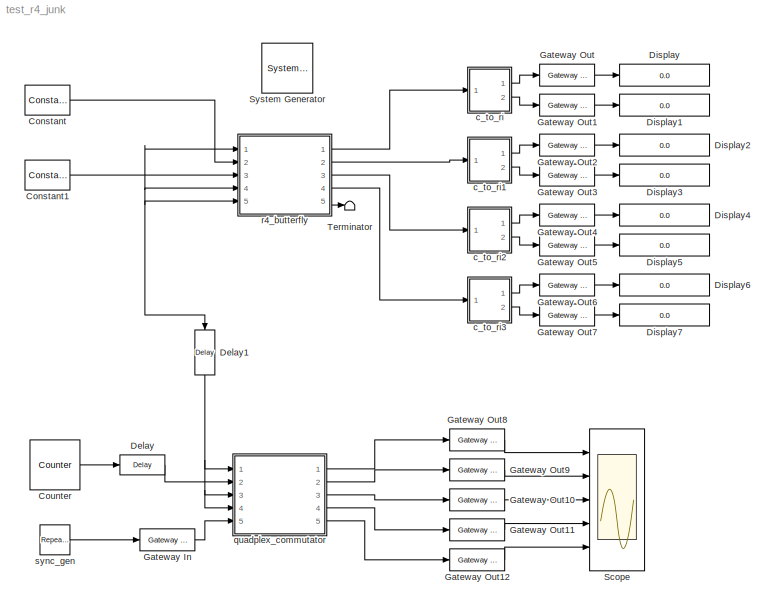
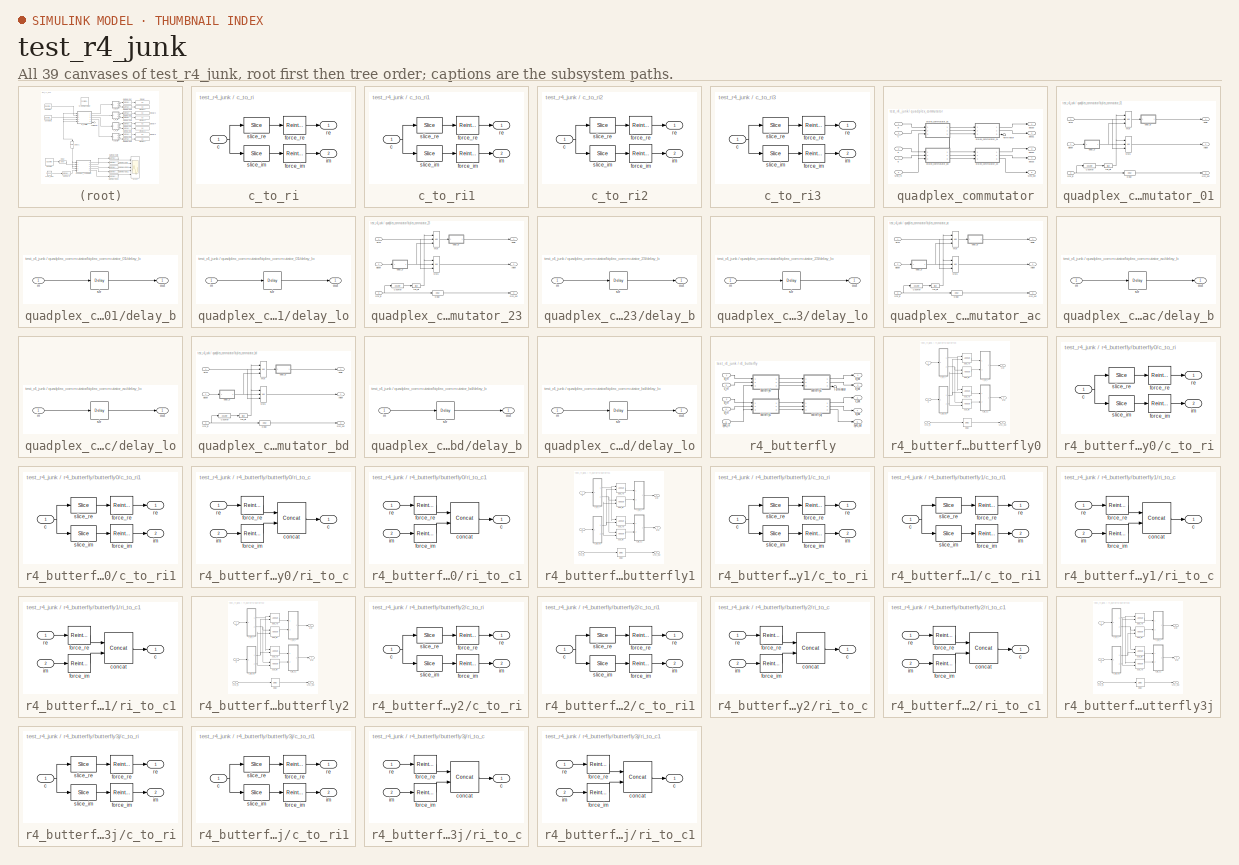
[diagram: thumbnail index - all 39 canvases of the model, root first then tree order]
MODEL test_r4_junk
KIND model
BLOCK [Reference]  System Generator  REF=xbsIndex_r3/ System Generator
  AttributesFormatString = System\\nGenerator
  Ports = []
  ShowPortLabels = on
  SourceBlock = xbsIndex_r3/ System Generator
  SourceType = Xilinx System Generator
  Tag = genX
  UserData = DataTag0
  UserDataPersistent = on
  core_generation = According to Block Masks
  dbl_ovrd = According to Block Masks
  deprecated_control = off
  directory = ./netlist
  eval_field = 0
  incr_netlist = off
  package = bg575
  part = xc2v1000
  run_coregen = off
  simulink_period = 1
  speed = -4
  synthesis_tool = XST
  sysclk_period = 100
  testbench = off
  trim_vbits = Everywhere in SubSystem
  xilinxfamily = Virtex2
BLOCK [Reference] Constant  REF=xbsIndex_r3/Constant
  Ports = [0, 1]
  SourceBlock = xbsIndex_r3/Constant
  SourceType = Xilinx Constant Block
  arith_type = Unsigned
  bin_pt = 0
  carry = CIN
  const = 4
  dbl_ovrd = off
  equ = P=C
  explicit_period = on
  inp1 = P
  inp2 = PCIN>>17
  iostate = 0
  n_bits = 4
  opr = +
  opselect = C
  period = 1
BLOCK [Reference] Constant1  REF=xbsIndex_r3/Constant
  Ports = [0, 1]
  SourceBlock = xbsIndex_r3/Constant
  SourceType = Xilinx Constant Block
  arith_type = Unsigned
  bin_pt = 0
  carry = CIN
  const = 0
  dbl_ovrd = off
  equ = P=C
  explicit_period = on
  inp1 = P
  inp2 = PCIN>>17
  iostate = 0
  n_bits = 4
  opr = +
  opselect = C
  period = 1
BLOCK [Reference] Counter  REF=xbsIndex_r3/Counter
  Ports = [0, 1]
  SourceBlock = xbsIndex_r3/Counter
  SourceType = Xilinx Counter Block
  arith_type = Unsigned
  bin_pt = 0
  cnt_by_val = 1
  cnt_to = Inf
  cnt_type = Free Running
  dbl_ovrd = off
  en = off
  explicit_period = off
  gen_core = off
  load_pin = off
  n_bits = 4
  operation = Up
  period = 1
  rst = off
  show_param = off
  start_count = 0
  use_rpm = on
  xl_area = [0, 0, 0, 0, 0, 0, 0]
  xl_use_area = off
BLOCK [Reference] Delay  REF=xbsIndex_r3/Delay
  Ports = [1, 1]
  SourceBlock = xbsIndex_r3/Delay
  SourceType = Xilinx Delay Block
  accept_only_valid = off
  dbl_ovrd = off
  en = off
  explicit_period = off
  init_zero = on
  latency = 1
  period = 1
  reg_retiming = off
  show_param = off
  xl_area = [0, 0, 0, 0, 0, 0, 0]
  xl_use_area = off
BLOCK [Reference] Delay1  REF=xbsIndex_r3/Delay
  Ports = [1, 1]
  SourceBlock = xbsIndex_r3/Delay
  SourceType = Xilinx Delay Block
  accept_only_valid = off
  dbl_ovrd = off
  en = off
  explicit_period = off
  init_zero = on
  latency = 1
  period = 1
  reg_retiming = off
  show_param = off
  xl_area = [0, 0, 0, 0, 0, 0, 0]
  xl_use_area = off
BLOCK [Display] Display
  Decimation = 1
  Ports = [1]
BLOCK [Display] Display1
  Decimation = 1
  Ports = [1]
BLOCK [Display] Display2
  Decimation = 1
  Ports = [1]
BLOCK [Display] Display3
  Decimation = 1
  Ports = [1]
BLOCK [Display] Display4
  Decimation = 1
  Ports = [1]
BLOCK [Display] Display5
  Decimation = 1
  Ports = [1]
BLOCK [Display] Display6
  Decimation = 1
  Ports = [1]
BLOCK [Display] Display7
  Decimation = 1
  Ports = [1]
BLOCK [Reference] Gateway In  REF=xbsIndex_r3/Gateway In
  LOCs = {}
  Ports = [1, 1]
  SourceBlock = xbsIndex_r3/Gateway In
  SourceType = Xilinx Gateway In
  arith_type = Boolean
  bin_pt = 0
  dbl_ovrd = off
  locs_specified = off
  n_bits = 16
  needs_fixed_name = off
  overflow = Wrap
  period = 1
  quantization = Truncate
  show_param = off
  timing_constraint = None
  xl_area = [0 0 0 0 16 0 0]
  xl_use_area = off
BLOCK [Reference] Gateway Out  REF=xbsIndex_r3/Gateway Out
  LOCs = {}
  Ports = [1, 1]
  SourceBlock = xbsIndex_r3/Gateway Out
  SourceType = Xilinx Gateway Out
  arith_type = Boolean
  bin_pt = 6
  hdl_port = on
  locs_specified = off
  nbits = 8
  needs_fixed_name = off
  output_type = Double
  overflow = Wrap
  quantization = Truncate
  show_param = off
  timing_constraint = None
  xl_area = [0, 0, 0, 0, 0, 0, 0]
  xl_use_area = off
BLOCK [Reference] Gateway Out1  REF=xbsIndex_r3/Gateway Out
  LOCs = {}
  Ports = [1, 1]
  SourceBlock = xbsIndex_r3/Gateway Out
  SourceType = Xilinx Gateway Out
  arith_type = Boolean
  bin_pt = 6
  hdl_port = on
  locs_specified = off
  nbits = 8
  needs_fixed_name = off
  output_type = Double
  overflow = Wrap
  quantization = Truncate
  show_param = off
  timing_constraint = None
  xl_area = [0, 0, 0, 0, 0, 0, 0]
  xl_use_area = off
BLOCK [Reference] Gateway Out10  REF=xbsIndex_r3/Gateway Out
  LOCs = {}
  Ports = [1, 1]
  SourceBlock = xbsIndex_r3/Gateway Out
  SourceType = Xilinx Gateway Out
  arith_type = Boolean
  bin_pt = 6
  hdl_port = on
  locs_specified = off
  nbits = 8
  needs_fixed_name = off
  output_type = Double
  overflow = Wrap
  quantization = Truncate
  show_param = off
  timing_constraint = None
  xl_area = [0, 0, 0, 0, 0, 0, 0]
  xl_use_area = off
BLOCK [Reference] Gateway Out11  REF=xbsIndex_r3/Gateway Out
  LOCs = {}
  Ports = [1, 1]
  SourceBlock = xbsIndex_r3/Gateway Out
  SourceType = Xilinx Gateway Out
  arith_type = Boolean
  bin_pt = 6
  hdl_port = on
  locs_specified = off
  nbits = 8
  needs_fixed_name = off
  output_type = Double
  overflow = Wrap
  quantization = Truncate
  show_param = off
  timing_constraint = None
  xl_area = [0, 0, 0, 0, 0, 0, 0]
  xl_use_area = off
BLOCK [Reference] Gateway Out12  REF=xbsIndex_r3/Gateway Out
  LOCs = {}
  Ports = [1, 1]
  SourceBlock = xbsIndex_r3/Gateway Out
  SourceType = Xilinx Gateway Out
  arith_type = Boolean
  bin_pt = 6
  hdl_port = on
  locs_specified = off
  nbits = 8
  needs_fixed_name = off
  output_type = Double
  overflow = Wrap
  quantization = Truncate
  show_param = off
  timing_constraint = None
  xl_area = [0, 0, 0, 0, 0, 0, 0]
  xl_use_area = off
BLOCK [Reference] Gateway Out2  REF=xbsIndex_r3/Gateway Out
  LOCs = {}
  Ports = [1, 1]
  SourceBlock = xbsIndex_r3/Gateway Out
  SourceType = Xilinx Gateway Out
  arith_type = Boolean
  bin_pt = 6
  hdl_port = on
  locs_specified = off
  nbits = 8
  needs_fixed_name = off
  output_type = Double
  overflow = Wrap
  quantization = Truncate
  show_param = off
  timing_constraint = None
  xl_area = [0, 0, 0, 0, 0, 0, 0]
  xl_use_area = off
BLOCK [Reference] Gateway Out3  REF=xbsIndex_r3/Gateway Out
  LOCs = {}
  Ports = [1, 1]
  SourceBlock = xbsIndex_r3/Gateway Out
  SourceType = Xilinx Gateway Out
  arith_type = Boolean
  bin_pt = 6
  hdl_port = on
  locs_specified = off
  nbits = 8
  needs_fixed_name = off
  output_type = Double
  overflow = Wrap
  quantization = Truncate
  show_param = off
  timing_constraint = None
  xl_area = [0, 0, 0, 0, 0, 0, 0]
  xl_use_area = off
BLOCK [Reference] Gateway Out4  REF=xbsIndex_r3/Gateway Out
  LOCs = {}
  Ports = [1, 1]
  SourceBlock = xbsIndex_r3/Gateway Out
  SourceType = Xilinx Gateway Out
  arith_type = Boolean
  bin_pt = 6
  hdl_port = on
  locs_specified = off
  nbits = 8
  needs_fixed_name = off
  output_type = Double
  overflow = Wrap
  quantization = Truncate
  show_param = off
  timing_constraint = None
  xl_area = [0, 0, 0, 0, 0, 0, 0]
  xl_use_area = off
BLOCK [Reference] Gateway Out5  REF=xbsIndex_r3/Gateway Out
  LOCs = {}
  Ports = [1, 1]
  SourceBlock = xbsIndex_r3/Gateway Out
  SourceType = Xilinx Gateway Out
  arith_type = Boolean
  bin_pt = 6
  hdl_port = on
  locs_specified = off
  nbits = 8
  needs_fixed_name = off
  output_type = Double
  overflow = Wrap
  quantization = Truncate
  show_param = off
  timing_constraint = None
  xl_area = [0, 0, 0, 0, 0, 0, 0]
  xl_use_area = off
BLOCK [Reference] Gateway Out6  REF=xbsIndex_r3/Gateway Out
  LOCs = {}
  Ports = [1, 1]
  SourceBlock = xbsIndex_r3/Gateway Out
  SourceType = Xilinx Gateway Out
  arith_type = Boolean
  bin_pt = 6
  hdl_port = on
  locs_specified = off
  nbits = 8
  needs_fixed_name = off
  output_type = Double
  overflow = Wrap
  quantization = Truncate
  show_param = off
  timing_constraint = None
  xl_area = [0, 0, 0, 0, 0, 0, 0]
  xl_use_area = off
BLOCK [Reference] Gateway Out7  REF=xbsIndex_r3/Gateway Out
  LOCs = {}
  Ports = [1, 1]
  SourceBlock = xbsIndex_r3/Gateway Out
  SourceType = Xilinx Gateway Out
  arith_type = Boolean
  bin_pt = 6
  hdl_port = on
  locs_specified = off
  nbits = 8
  needs_fixed_name = off
  output_type = Double
  overflow = Wrap
  quantization = Truncate
  show_param = off
  timing_constraint = None
  xl_area = [0, 0, 0, 0, 0, 0, 0]
  xl_use_area = off
BLOCK [Reference] Gateway Out8  REF=xbsIndex_r3/Gateway Out
  LOCs = {}
  Ports = [1, 1]
  SourceBlock = xbsIndex_r3/Gateway Out
  SourceType = Xilinx Gateway Out
  arith_type = Boolean
  bin_pt = 6
  hdl_port = on
  locs_specified = off
  nbits = 8
  needs_fixed_name = off
  output_type = Double
  overflow = Wrap
  quantization = Truncate
  show_param = off
  timing_constraint = None
  xl_area = [0, 0, 0, 0, 0, 0, 0]
  xl_use_area = off
BLOCK [Reference] Gateway Out9  REF=xbsIndex_r3/Gateway Out
  LOCs = {}
  Ports = [1, 1]
  SourceBlock = xbsIndex_r3/Gateway Out
  SourceType = Xilinx Gateway Out
  arith_type = Boolean
  bin_pt = 6
  hdl_port = on
  locs_specified = off
  nbits = 8
  needs_fixed_name = off
  output_type = Double
  overflow = Wrap
  quantization = Truncate
  show_param = off
  timing_constraint = None
  xl_area = [0, 0, 0, 0, 0, 0, 0]
  xl_use_area = off
BLOCK [Scope] Scope
  DataFormat = StructureWithTime
  NumInputPorts = 5
  Ports = [5]
  YMax = 5~5~5~5~5
  YMin = -5~-5~-5~-5~-5
  ZoomMode = xonly
BLOCK [Terminator] Terminator
BLOCK [SubSystem] c_to_ri
  AttributesFormatString = 4_1 r/i
  MaskCallbackString = |
  MaskDescription = Outputs real and imaginary components of a complex input.
  MaskEnableString = on,on
  MaskHelp = <pre>\nDescription::\n\nOutputs real and imaginary components of a complex input.\nUseful for simplifying interconnects.\nSee also: Real-Imag to Complex (ri_to_c)\n\nMask Parameters::\n\nBit Width (n_bits): Specifies the width of the real/imaginary components.\nAssumed equal for both components.\n\nBinary Point (bin_pt): Specifies the binary point location in the real/imaginary components.\nAssume...<+36ch>  <repeated x12 — deduplicated; at blocks: c_to_ri, c_to_ri1, c_to_ri2, c_to_ri3>
  MaskIconFrame = on
  MaskIconOpaque = on
  MaskIconRotate = none
  MaskIconUnits = autoscale
  MaskInitialization = c_to_ri_init(gcb,n_bits,bin_pt);
  MaskPromptString = Bit Width|Binary Point
  MaskSelfModifiable = on
  MaskStyleString = edit,edit
  MaskTabNameString = ,
  MaskToolTipString = on,on
  MaskTunableValueString = on,on
  MaskType = Complex to Real-Imag
  MaskValueString = 4|1
  MaskVarAliasString = ,
  MaskVariables = n_bits=@1;bin_pt=@2;
  MaskVisibilityString = on,on
  MinAlgLoopOccurrences = off
  Ports = [1, 2]
  RTWSystemCode = Auto
  TreatAsAtomicUnit = off
  UserData = DataTag1
  UserDataPersistent = on
BLOCK [Inport] c_to_ri/c
  IconDisplay = Port number
  LatchInput = off
  Port = 1
BLOCK [Reference] c_to_ri/force_im  REF=xbsIndex_r3/Reinterpret
  Ports = [1, 1]
  SourceBlock = xbsIndex_r3/Reinterpret
  SourceType = Xilinx Type Reinterpreting Block
  arith_type = Signed  (2's comp)
  bin_pt = 1
  force_arith_type = on
  force_bin_pt = on
  force_valid = on
BLOCK [Reference] c_to_ri/force_re  REF=xbsIndex_r3/Reinterpret
  Ports = [1, 1]
  SourceBlock = xbsIndex_r3/Reinterpret
  SourceType = Xilinx Type Reinterpreting Block
  arith_type = Signed  (2's comp)
  bin_pt = 1
  force_arith_type = on
  force_bin_pt = on
  force_valid = on
BLOCK [Outport] c_to_ri/im
  BusOutputAsStruct = off
  IconDisplay = Port number
  Port = 2
BLOCK [Outport] c_to_ri/re
  BusOutputAsStruct = off
  IconDisplay = Port number
BLOCK [Reference] c_to_ri/slice_im  REF=xbsIndex_r3/Slice
  Ports = [1, 1]
  SourceBlock = xbsIndex_r3/Slice
  SourceType = Xilinx Slice Block
  base0 = LSB of Input
  base1 = MSB of Input
  bit0 = 0
  bit1 = 0
  boolean_output = off
  dbl_ovrd = off
  explicit_period = off
  mode = Lower Bit Location + Width
  nbits = 4
  period = 1
BLOCK [Reference] c_to_ri/slice_re  REF=xbsIndex_r3/Slice
  Ports = [1, 1]
  SourceBlock = xbsIndex_r3/Slice
  SourceType = Xilinx Slice Block
  base0 = LSB of Input
  base1 = MSB of Input
  bit0 = 0
  bit1 = 0
  boolean_output = off
  dbl_ovrd = off
  explicit_period = off
  mode = Upper Bit Location + Width
  nbits = 4
  period = 1
BLOCK [SubSystem] c_to_ri1
  AttributesFormatString = 4_1 r/i
  MaskCallbackString = |
  MaskDescription = Outputs real and imaginary components of a complex input.
  MaskEnableString = on,on
  MaskIconFrame = on
  MaskIconOpaque = on
  MaskIconRotate = none
  MaskIconUnits = autoscale
  MaskInitialization = c_to_ri_init(gcb,n_bits,bin_pt);
  MaskPromptString = Bit Width|Binary Point
  MaskSelfModifiable = on
  MaskStyleString = edit,edit
  MaskTabNameString = ,
  MaskToolTipString = on,on
  MaskTunableValueString = on,on
  MaskType = Complex to Real-Imag
  MaskValueString = 4|1
  MaskVarAliasString = ,
  MaskVariables = n_bits=@1;bin_pt=@2;
  MaskVisibilityString = on,on
  MinAlgLoopOccurrences = off
  Ports = [1, 2]
  RTWSystemCode = Auto
  TreatAsAtomicUnit = off
  UserData = DataTag2
  UserDataPersistent = on
BLOCK [Inport] c_to_ri1/c
  IconDisplay = Port number
  LatchInput = off
  Port = 1
BLOCK [Reference] c_to_ri1/force_im  REF=xbsIndex_r3/Reinterpret
  Ports = [1, 1]
  SourceBlock = xbsIndex_r3/Reinterpret
  SourceType = Xilinx Type Reinterpreting Block
  arith_type = Signed  (2's comp)
  bin_pt = 1
  force_arith_type = on
  force_bin_pt = on
  force_valid = on
BLOCK [Reference] c_to_ri1/force_re  REF=xbsIndex_r3/Reinterpret
  Ports = [1, 1]
  SourceBlock = xbsIndex_r3/Reinterpret
  SourceType = Xilinx Type Reinterpreting Block
  arith_type = Signed  (2's comp)
  bin_pt = 1
  force_arith_type = on
  force_bin_pt = on
  force_valid = on
BLOCK [Outport] c_to_ri1/im
  BusOutputAsStruct = off
  IconDisplay = Port number
  Port = 2
BLOCK [Outport] c_to_ri1/re
  BusOutputAsStruct = off
  IconDisplay = Port number
BLOCK [Reference] c_to_ri1/slice_im  REF=xbsIndex_r3/Slice
  Ports = [1, 1]
  SourceBlock = xbsIndex_r3/Slice
  SourceType = Xilinx Slice Block
  base0 = LSB of Input
  base1 = MSB of Input
  bit0 = 0
  bit1 = 0
  boolean_output = off
  dbl_ovrd = off
  explicit_period = off
  mode = Lower Bit Location + Width
  nbits = 4
  period = 1
BLOCK [Reference] c_to_ri1/slice_re  REF=xbsIndex_r3/Slice
  Ports = [1, 1]
  SourceBlock = xbsIndex_r3/Slice
  SourceType = Xilinx Slice Block
  base0 = LSB of Input
  base1 = MSB of Input
  bit0 = 0
  bit1 = 0
  boolean_output = off
  dbl_ovrd = off
  explicit_period = off
  mode = Upper Bit Location + Width
  nbits = 4
  period = 1
BLOCK [SubSystem] c_to_ri2
  AttributesFormatString = 4_1 r/i
  MaskCallbackString = |
  MaskDescription = Outputs real and imaginary components of a complex input.
  MaskEnableString = on,on
  MaskIconFrame = on
  MaskIconOpaque = on
  MaskIconRotate = none
  MaskIconUnits = autoscale
  MaskInitialization = c_to_ri_init(gcb,n_bits,bin_pt);
  MaskPromptString = Bit Width|Binary Point
  MaskSelfModifiable = on
  MaskStyleString = edit,edit
  MaskTabNameString = ,
  MaskToolTipString = on,on
  MaskTunableValueString = on,on
  MaskType = Complex to Real-Imag
  MaskValueString = 4|1
  MaskVarAliasString = ,
  MaskVariables = n_bits=@1;bin_pt=@2;
  MaskVisibilityString = on,on
  MinAlgLoopOccurrences = off
  Ports = [1, 2]
  RTWSystemCode = Auto
  TreatAsAtomicUnit = off
  UserData = DataTag3
  UserDataPersistent = on
BLOCK [Inport] c_to_ri2/c
  IconDisplay = Port number
  LatchInput = off
  Port = 1
BLOCK [Reference] c_to_ri2/force_im  REF=xbsIndex_r3/Reinterpret
  Ports = [1, 1]
  SourceBlock = xbsIndex_r3/Reinterpret
  SourceType = Xilinx Type Reinterpreting Block
  arith_type = Signed  (2's comp)
  bin_pt = 1
  force_arith_type = on
  force_bin_pt = on
  force_valid = on
BLOCK [Reference] c_to_ri2/force_re  REF=xbsIndex_r3/Reinterpret
  Ports = [1, 1]
  SourceBlock = xbsIndex_r3/Reinterpret
  SourceType = Xilinx Type Reinterpreting Block
  arith_type = Signed  (2's comp)
  bin_pt = 1
  force_arith_type = on
  force_bin_pt = on
  force_valid = on
BLOCK [Outport] c_to_ri2/im
  BusOutputAsStruct = off
  IconDisplay = Port number
  Port = 2
BLOCK [Outport] c_to_ri2/re
  BusOutputAsStruct = off
  IconDisplay = Port number
BLOCK [Reference] c_to_ri2/slice_im  REF=xbsIndex_r3/Slice
  Ports = [1, 1]
  SourceBlock = xbsIndex_r3/Slice
  SourceType = Xilinx Slice Block
  base0 = LSB of Input
  base1 = MSB of Input
  bit0 = 0
  bit1 = 0
  boolean_output = off
  dbl_ovrd = off
  explicit_period = off
  mode = Lower Bit Location + Width
  nbits = 4
  period = 1
BLOCK [Reference] c_to_ri2/slice_re  REF=xbsIndex_r3/Slice
  Ports = [1, 1]
  SourceBlock = xbsIndex_r3/Slice
  SourceType = Xilinx Slice Block
  base0 = LSB of Input
  base1 = MSB of Input
  bit0 = 0
  bit1 = 0
  boolean_output = off
  dbl_ovrd = off
  explicit_period = off
  mode = Upper Bit Location + Width
  nbits = 4
  period = 1
BLOCK [SubSystem] c_to_ri3
  AttributesFormatString = 4_1 r/i
  MaskCallbackString = |
  MaskDescription = Outputs real and imaginary components of a complex input.
  MaskEnableString = on,on
  MaskIconFrame = on
  MaskIconOpaque = on
  MaskIconRotate = none
  MaskIconUnits = autoscale
  MaskInitialization = c_to_ri_init(gcb,n_bits,bin_pt);
  MaskPromptString = Bit Width|Binary Point
  MaskSelfModifiable = on
  MaskStyleString = edit,edit
  MaskTabNameString = ,
  MaskToolTipString = on,on
  MaskTunableValueString = on,on
  MaskType = Complex to Real-Imag
  MaskValueString = 4|1
  MaskVarAliasString = ,
  MaskVariables = n_bits=@1;bin_pt=@2;
  MaskVisibilityString = on,on
  MinAlgLoopOccurrences = off
  Ports = [1, 2]
  RTWSystemCode = Auto
  TreatAsAtomicUnit = off
  UserData = DataTag4
  UserDataPersistent = on
BLOCK [Inport] c_to_ri3/c
  IconDisplay = Port number
  LatchInput = off
  Port = 1
BLOCK [Reference] c_to_ri3/force_im  REF=xbsIndex_r3/Reinterpret
  Ports = [1, 1]
  SourceBlock = xbsIndex_r3/Reinterpret
  SourceType = Xilinx Type Reinterpreting Block
  arith_type = Signed  (2's comp)
  bin_pt = 1
  force_arith_type = on
  force_bin_pt = on
  force_valid = on
BLOCK [Reference] c_to_ri3/force_re  REF=xbsIndex_r3/Reinterpret
  Ports = [1, 1]
  SourceBlock = xbsIndex_r3/Reinterpret
  SourceType = Xilinx Type Reinterpreting Block
  arith_type = Signed  (2's comp)
  bin_pt = 1
  force_arith_type = on
  force_bin_pt = on
  force_valid = on
BLOCK [Outport] c_to_ri3/im
  BusOutputAsStruct = off
  IconDisplay = Port number
  Port = 2
BLOCK [Outport] c_to_ri3/re
  BusOutputAsStruct = off
  IconDisplay = Port number
BLOCK [Reference] c_to_ri3/slice_im  REF=xbsIndex_r3/Slice
  Ports = [1, 1]
  SourceBlock = xbsIndex_r3/Slice
  SourceType = Xilinx Slice Block
  base0 = LSB of Input
  base1 = MSB of Input
  bit0 = 0
  bit1 = 0
  boolean_output = off
  dbl_ovrd = off
  explicit_period = off
  mode = Lower Bit Location + Width
  nbits = 4
  period = 1
BLOCK [Reference] c_to_ri3/slice_re  REF=xbsIndex_r3/Slice
  Ports = [1, 1]
  SourceBlock = xbsIndex_r3/Slice
  SourceType = Xilinx Slice Block
  base0 = LSB of Input
  base1 = MSB of Input
  bit0 = 0
  bit1 = 0
  boolean_output = off
  dbl_ovrd = off
  explicit_period = off
  mode = Upper Bit Location + Width
  nbits = 4
  period = 1
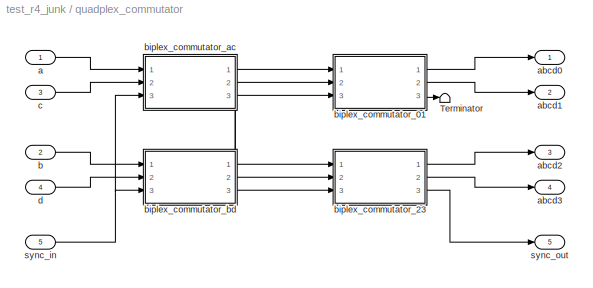
BLOCK [SubSystem] quadplex_commutator
  AttributesFormatString = size = 16\n0/4 bram
  MaskCallbackString = ||
  MaskDescription = The quadplex commutator performs a \"quarter-blockwise\" commutation of the four inputs.  A \"block\" is 4^log4_size consecutive samples (i.e. always a power of 4).  sync_in precedes the first data input sample by one clock cycle.  Overall latency from sync_in to sync_out is 2^(log4_size)+2^(log4_size-1)+2.
  MaskEnableString = on,on,on
  MaskHelp = <pre>\nDescription::\n\nThe quadplex commutator performs a \"quarter-blockwise\" commutation of the four inputs.\nA \"block\" is 4^log4_size consecutive samples (i.e. always a power of 4).\n\nsync_in precedes the first data input sample by one clock cycle.\nsync_out precedes the corresponding output sample by one clock cycle.\nOverall latency from sync_in to sync_out is 2^(log4_size)+2^(log4_size-...<+547ch>
  MaskIconFrame = on
  MaskIconOpaque = on
  MaskIconRotate = none
  MaskIconUnits = autoscale
  MaskInitialization = quadplex_commutator_init(gcb, ...\n    log4_size, ...\n    n_bits, ...\n    use_bram);\n
  MaskPromptString = Log4 Block Size|Bit Width|Use BRAM
  MaskSelfModifiable = on
  MaskStyleString = edit,edit,checkbox
  MaskTabNameString = ,,
  MaskToolTipString = on,on,on
  MaskTunableValueString = on,on,on
  MaskType = Quadplex Commutator
  MaskValueString = 2|2|on
  MaskVarAliasString = ,,
  MaskVariables = log4_size=@1;n_bits=@2;use_bram=@3;
  MaskVisibilityString = on,on,on
  MinAlgLoopOccurrences = off
  Ports = [5, 5]
  RTWSystemCode = Auto
  TreatAsAtomicUnit = off
  UserData = DataTag5
  UserDataPersistent = on
BLOCK [Terminator] quadplex_commutator/Terminator
BLOCK [Inport] quadplex_commutator/a
  IconDisplay = Port number
  LatchInput = off
  Port = 1
BLOCK [Outport] quadplex_commutator/abcd0
  BusOutputAsStruct = off
  IconDisplay = Port number
BLOCK [Outport] quadplex_commutator/abcd1
  BusOutputAsStruct = off
  IconDisplay = Port number
  Port = 2
BLOCK [Outport] quadplex_commutator/abcd2
  BusOutputAsStruct = off
  IconDisplay = Port number
  Port = 3
BLOCK [Outport] quadplex_commutator/abcd3
  BusOutputAsStruct = off
  IconDisplay = Port number
  Port = 4
BLOCK [Inport] quadplex_commutator/b
  IconDisplay = Port number
  LatchInput = off
  Port = 2
BLOCK [SubSystem] quadplex_commutator/biplex_commutator_01
  AttributesFormatString = size = 8\ndelay slr
  MaskCallbackString = ||
  MaskDescription = The biplex commutator commutes the first half of the BloBhi input \"block\"  with the last half of the AloAhi input \"block\".  A \"block\" is 2^log2_size consecutive samples (i.e. always a power of 2).  sync_in precedes the first data input sample by one clock cycle.  Overall latency from sync_in to sync_out is 2^(log2_size-1)+1.  <repeated x4 — deduplicated; at blocks: biplex_commutator_01, biplex_commutator_23, biplex_commutator_ac, biplex_commutator_bd>
  MaskEnableString = on,on,on
  MaskHelp = <pre>\nDescription::\n\nThe biplex commutator commutes the first half of the BloBhi input \"block\"  with the last half\nof the AloAhi input \"block\".  A \"block\" is 2^log2_size consecutive samples (i.e. always a\npower of 2).\n\nsync_in precedes the first data input sample by one clock cycle.\nsync_out precedes the corresponding output sample by one clock cycle.\nOverall latency from sync_in to...<+566ch>  <repeated x4 — deduplicated; at blocks: biplex_commutator_01, biplex_commutator_23, biplex_commutator_ac, biplex_commutator_bd>
  MaskIconFrame = on
  MaskIconOpaque = on
  MaskIconRotate = none
  MaskIconUnits = autoscale
  MaskPromptString = Log2 Block Size|Bit Width|Use BRAM
  MaskSelfModifiable = on
  MaskStyleString = edit,edit,checkbox
  MaskTabNameString = ,,
  MaskToolTipString = on,on,on
  MaskTunableValueString = on,on,on
  MaskType = Biplex Commutator
  MaskValueString = 3|2|off
  MaskVarAliasString = ,,
  MaskVariables = log2_size=@1;n_bits=@2;use_bram=@3;
  MaskVisibilityString = on,on,on
  MinAlgLoopOccurrences = off
  Ports = [3, 3]
  RTWSystemCode = Auto
  TreatAsAtomicUnit = off
  UserData = DataTag6
  UserDataPersistent = on
BLOCK [Outport] quadplex_commutator/biplex_commutator_01/AhiBhi
  BusOutputAsStruct = off
  IconDisplay = Port number
  Port = 2
BLOCK [Inport] quadplex_commutator/biplex_commutator_01/AloAhi
  IconDisplay = Port number
  LatchInput = off
  Port = 1
BLOCK [Outport] quadplex_commutator/biplex_commutator_01/AloBlo
  BusOutputAsStruct = off
  IconDisplay = Port number
BLOCK [Inport] quadplex_commutator/biplex_commutator_01/BloBhi
  IconDisplay = Port number
  LatchInput = off
  Port = 2
BLOCK [Reference] quadplex_commutator/biplex_commutator_01/Counter  REF=xbsIndex_r3/Counter
  Ports = [1, 1]
  SourceBlock = xbsIndex_r3/Counter
  SourceType = Xilinx Counter Block
  arith_type = Unsigned
  bin_pt = 0
  cnt_by_val = 1
  cnt_to = Inf
  cnt_type = Free Running
  dbl_ovrd = off
  en = off
  explicit_period = off
  gen_core = off
  load_pin = off
  n_bits = 3
  operation = Up
  period = 1
  rst = on
  show_param = off
  start_count = 0
  use_rpm = on
  xl_area = [0, 0, 0, 0, 0, 0, 0]
  xl_use_area = off
BLOCK [Reference] quadplex_commutator/biplex_commutator_01/Delay  REF=xbsIndex_r3/Delay
  Ports = [1, 1]
  SourceBlock = xbsIndex_r3/Delay
  SourceType = Xilinx Delay Block
  accept_only_valid = off
  dbl_ovrd = off
  en = off
  explicit_period = off
  init_zero = on
  latency = 5
  period = 1
  reg_retiming = off
  show_param = off
  xl_area = [0, 0, 0, 0, 0, 0, 0]
  xl_use_area = off
BLOCK [Reference] quadplex_commutator/biplex_commutator_01/Mux  REF=xbsIndex_r3/Mux
  Ports = [3, 1]
  SourceBlock = xbsIndex_r3/Mux
  SourceType = Xilinx Multiplexer Block
  arith_type = Signed  (2's comp)
  bin_pt = 2
  dbl_ovrd = off
  en = off
  explicit_period = off
  gen_core = off
  inputs = 2
  latency = 1
  mux_type = off
  n_bits = 8
  overflow = Wrap
  period = 1
  precision = Full
  quantization = Truncate
  show_param = off
  use_rpm = off
  xl_area = [0, 0, 0, 0, 0, 0, 0]
  xl_use_area = off
BLOCK [Reference] quadplex_commutator/biplex_commutator_01/Mux1  REF=xbsIndex_r3/Mux
  Ports = [3, 1]
  SourceBlock = xbsIndex_r3/Mux
  SourceType = Xilinx Multiplexer Block
  arith_type = Signed  (2's comp)
  bin_pt = 2
  dbl_ovrd = off
  en = off
  explicit_period = off
  gen_core = off
  inputs = 2
  latency = 1
  mux_type = off
  n_bits = 8
  overflow = Wrap
  period = 1
  precision = Full
  quantization = Truncate
  show_param = on
  use_rpm = off
  xl_area = [0, 0, 0, 0, 0, 0, 0]
  xl_use_area = off
BLOCK [SubSystem] quadplex_commutator/biplex_commutator_01/delay_b
  AttributesFormatString = slr depth = 4
  MaskDescription = A delay block that uses SLR16 elements for its storage.
  MaskEnableString = on
  MaskHelp = <pre>\nDescription::\n\nA delay block that uses SLR16 elements for its storage.\n\nMask Parameters::\n\nDelay Depth (delay_depth): The length of the delay.\n</pre>
  MaskIconFrame = on
  MaskIconOpaque = on
  MaskIconRotate = none
  MaskIconUnits = autoscale
  MaskPromptString = Delay Depth
  MaskSelfModifiable = on
  MaskStyleString = edit
  MaskToolTipString = on
  MaskTunableValueString = on
  MaskType = SLR16 Delay
  MaskValueString = 4
  MaskVariables = delay_depth=@1;
  MaskVisibilityString = on
  MinAlgLoopOccurrences = off
  Ports = [1, 1]
  RTWSystemCode = Auto
  TreatAsAtomicUnit = off
  UserData = DataTag7
  UserDataPersistent = on
BLOCK [Inport] quadplex_commutator/biplex_commutator_01/delay_b/in
  IconDisplay = Port number
  LatchInput = off
  Port = 1
BLOCK [Outport] quadplex_commutator/biplex_commutator_01/delay_b/out
  BusOutputAsStruct = off
  IconDisplay = Port number
BLOCK [Reference] quadplex_commutator/biplex_commutator_01/delay_b/slr  REF=xbsIndex_r3/Delay
  Ports = [1, 1]
  SourceBlock = xbsIndex_r3/Delay
  SourceType = Xilinx Delay Block
  accept_only_valid = off
  dbl_ovrd = off
  en = off
  explicit_period = off
  init_zero = on
  latency = 4
  period = 1
  reg_retiming = off
  show_param = off
  xl_area = [0, 0, 0, 0, 0, 0, 0]
  xl_use_area = off
BLOCK [SubSystem] quadplex_commutator/biplex_commutator_01/delay_lo
  AttributesFormatString = slr depth = 4
  MaskDescription = A delay block that uses SLR16 elements for its storage.
  MaskEnableString = on
  MaskHelp = <pre>\nDescription::\n\nA delay block that uses SLR16 elements for its storage.\n\nMask Parameters::\n\nDelay Depth (delay_depth): The length of the delay.\n</pre>
  MaskIconFrame = on
  MaskIconOpaque = on
  MaskIconRotate = none
  MaskIconUnits = autoscale
  MaskPromptString = Delay Depth
  MaskSelfModifiable = on
  MaskStyleString = edit
  MaskToolTipString = on
  MaskTunableValueString = on
  MaskType = SLR16 Delay
  MaskValueString = 4
  MaskVariables = delay_depth=@1;
  MaskVisibilityString = on
  MinAlgLoopOccurrences = off
  Ports = [1, 1]
  RTWSystemCode = Auto
  TreatAsAtomicUnit = off
  UserData = DataTag8
  UserDataPersistent = on
BLOCK [Inport] quadplex_commutator/biplex_commutator_01/delay_lo/in
  IconDisplay = Port number
  LatchInput = off
  Port = 1
BLOCK [Outport] quadplex_commutator/biplex_commutator_01/delay_lo/out
  BusOutputAsStruct = off
  IconDisplay = Port number
BLOCK [Reference] quadplex_commutator/biplex_commutator_01/delay_lo/slr  REF=xbsIndex_r3/Delay
  Ports = [1, 1]
  SourceBlock = xbsIndex_r3/Delay
  SourceType = Xilinx Delay Block
  accept_only_valid = off
  dbl_ovrd = off
  en = off
  explicit_period = off
  init_zero = on
  latency = 4
  period = 1
  reg_retiming = off
  show_param = off
  xl_area = [0, 0, 0, 0, 0, 0, 0]
  xl_use_area = off
BLOCK [Inport] quadplex_commutator/biplex_commutator_01/sync_in
  IconDisplay = Port number
  LatchInput = off
  Port = 3
BLOCK [Outport] quadplex_commutator/biplex_commutator_01/sync_out
  BusOutputAsStruct = off
  IconDisplay = Port number
  Port = 3
BLOCK [Reference] quadplex_commutator/biplex_commutator_01/top_bit  REF=xbsIndex_r3/Slice
  Ports = [1, 1]
  SourceBlock = xbsIndex_r3/Slice
  SourceType = Xilinx Slice Block
  base0 = LSB of Input
  base1 = MSB of Input
  bit0 = 0
  bit1 = 0
  boolean_output = off
  dbl_ovrd = off
  explicit_period = off
  mode = Upper Bit Location + Width
  nbits = 1
  period = 1
BLOCK [SubSystem] quadplex_commutator/biplex_commutator_23
  AttributesFormatString = size = 8\ndelay slr
  MaskCallbackString = ||
  MaskEnableString = on,on,on
  MaskIconFrame = on
  MaskIconOpaque = on
  MaskIconRotate = none
  MaskIconUnits = autoscale
  MaskPromptString = Log2 Block Size|Bit Width|Use BRAM
  MaskSelfModifiable = on
  MaskStyleString = edit,edit,checkbox
  MaskTabNameString = ,,
  MaskToolTipString = on,on,on
  MaskTunableValueString = on,on,on
  MaskType = Biplex Commutator
  MaskValueString = 3|2|off
  MaskVarAliasString = ,,
  MaskVariables = log2_size=@1;n_bits=@2;use_bram=@3;
  MaskVisibilityString = on,on,on
  MinAlgLoopOccurrences = off
  Ports = [3, 3]
  RTWSystemCode = Auto
  TreatAsAtomicUnit = off
  UserData = DataTag9
  UserDataPersistent = on
BLOCK [Outport] quadplex_commutator/biplex_commutator_23/AhiBhi
  BusOutputAsStruct = off
  IconDisplay = Port number
  Port = 2
BLOCK [Inport] quadplex_commutator/biplex_commutator_23/AloAhi
  IconDisplay = Port number
  LatchInput = off
  Port = 1
BLOCK [Outport] quadplex_commutator/biplex_commutator_23/AloBlo
  BusOutputAsStruct = off
  IconDisplay = Port number
BLOCK [Inport] quadplex_commutator/biplex_commutator_23/BloBhi
  IconDisplay = Port number
  LatchInput = off
  Port = 2
BLOCK [Reference] quadplex_commutator/biplex_commutator_23/Counter  REF=xbsIndex_r3/Counter
  Ports = [1, 1]
  SourceBlock = xbsIndex_r3/Counter
  SourceType = Xilinx Counter Block
  arith_type = Unsigned
  bin_pt = 0
  cnt_by_val = 1
  cnt_to = Inf
  cnt_type = Free Running
  dbl_ovrd = off
  en = off
  explicit_period = off
  gen_core = off
  load_pin = off
  n_bits = 3
  operation = Up
  period = 1
  rst = on
  show_param = off
  start_count = 0
  use_rpm = on
  xl_area = [0, 0, 0, 0, 0, 0, 0]
  xl_use_area = off
BLOCK [Reference] quadplex_commutator/biplex_commutator_23/Delay  REF=xbsIndex_r3/Delay
  Ports = [1, 1]
  SourceBlock = xbsIndex_r3/Delay
  SourceType = Xilinx Delay Block
  accept_only_valid = off
  dbl_ovrd = off
  en = off
  explicit_period = off
  init_zero = on
  latency = 5
  period = 1
  reg_retiming = off
  show_param = off
  xl_area = [0, 0, 0, 0, 0, 0, 0]
  xl_use_area = off
BLOCK [Reference] quadplex_commutator/biplex_commutator_23/Mux  REF=xbsIndex_r3/Mux
  Ports = [3, 1]
  SourceBlock = xbsIndex_r3/Mux
  SourceType = Xilinx Multiplexer Block
  arith_type = Signed  (2's comp)
  bin_pt = 2
  dbl_ovrd = off
  en = off
  explicit_period = off
  gen_core = off
  inputs = 2
  latency = 1
  mux_type = off
  n_bits = 8
  overflow = Wrap
  period = 1
  precision = Full
  quantization = Truncate
  show_param = off
  use_rpm = off
  xl_area = [0, 0, 0, 0, 0, 0, 0]
  xl_use_area = off
BLOCK [Reference] quadplex_commutator/biplex_commutator_23/Mux1  REF=xbsIndex_r3/Mux
  Ports = [3, 1]
  SourceBlock = xbsIndex_r3/Mux
  SourceType = Xilinx Multiplexer Block
  arith_type = Signed  (2's comp)
  bin_pt = 2
  dbl_ovrd = off
  en = off
  explicit_period = off
  gen_core = off
  inputs = 2
  latency = 1
  mux_type = off
  n_bits = 8
  overflow = Wrap
  period = 1
  precision = Full
  quantization = Truncate
  show_param = on
  use_rpm = off
  xl_area = [0, 0, 0, 0, 0, 0, 0]
  xl_use_area = off
BLOCK [SubSystem] quadplex_commutator/biplex_commutator_23/delay_b
  AttributesFormatString = slr depth = 4
  MaskDescription = A delay block that uses SLR16 elements for its storage.
  MaskEnableString = on
  MaskHelp = <pre>\nDescription::\n\nA delay block that uses SLR16 elements for its storage.\n\nMask Parameters::\n\nDelay Depth (delay_depth): The length of the delay.\n</pre>
  MaskIconFrame = on
  MaskIconOpaque = on
  MaskIconRotate = none
  MaskIconUnits = autoscale
  MaskPromptString = Delay Depth
  MaskSelfModifiable = on
  MaskStyleString = edit
  MaskToolTipString = on
  MaskTunableValueString = on
  MaskType = SLR16 Delay
  MaskValueString = 4
  MaskVariables = delay_depth=@1;
  MaskVisibilityString = on
  MinAlgLoopOccurrences = off
  Ports = [1, 1]
  RTWSystemCode = Auto
  TreatAsAtomicUnit = off
  UserData = DataTag10
  UserDataPersistent = on
BLOCK [Inport] quadplex_commutator/biplex_commutator_23/delay_b/in
  IconDisplay = Port number
  LatchInput = off
  Port = 1
BLOCK [Outport] quadplex_commutator/biplex_commutator_23/delay_b/out
  BusOutputAsStruct = off
  IconDisplay = Port number
BLOCK [Reference] quadplex_commutator/biplex_commutator_23/delay_b/slr  REF=xbsIndex_r3/Delay
  Ports = [1, 1]
  SourceBlock = xbsIndex_r3/Delay
  SourceType = Xilinx Delay Block
  accept_only_valid = off
  dbl_ovrd = off
  en = off
  explicit_period = off
  init_zero = on
  latency = 4
  period = 1
  reg_retiming = off
  show_param = off
  xl_area = [0, 0, 0, 0, 0, 0, 0]
  xl_use_area = off
BLOCK [SubSystem] quadplex_commutator/biplex_commutator_23/delay_lo
  AttributesFormatString = slr depth = 4
  MaskDescription = A delay block that uses SLR16 elements for its storage.
  MaskEnableString = on
  MaskHelp = <pre>\nDescription::\n\nA delay block that uses SLR16 elements for its storage.\n\nMask Parameters::\n\nDelay Depth (delay_depth): The length of the delay.\n</pre>
  MaskIconFrame = on
  MaskIconOpaque = on
  MaskIconRotate = none
  MaskIconUnits = autoscale
  MaskPromptString = Delay Depth
  MaskSelfModifiable = on
  MaskStyleString = edit
  MaskToolTipString = on
  MaskTunableValueString = on
  MaskType = SLR16 Delay
  MaskValueString = 4
  MaskVariables = delay_depth=@1;
  MaskVisibilityString = on
  MinAlgLoopOccurrences = off
  Ports = [1, 1]
  RTWSystemCode = Auto
  TreatAsAtomicUnit = off
  UserData = DataTag11
  UserDataPersistent = on
BLOCK [Inport] quadplex_commutator/biplex_commutator_23/delay_lo/in
  IconDisplay = Port number
  LatchInput = off
  Port = 1
BLOCK [Outport] quadplex_commutator/biplex_commutator_23/delay_lo/out
  BusOutputAsStruct = off
  IconDisplay = Port number
BLOCK [Reference] quadplex_commutator/biplex_commutator_23/delay_lo/slr  REF=xbsIndex_r3/Delay
  Ports = [1, 1]
  SourceBlock = xbsIndex_r3/Delay
  SourceType = Xilinx Delay Block
  accept_only_valid = off
  dbl_ovrd = off
  en = off
  explicit_period = off
  init_zero = on
  latency = 4
  period = 1
  reg_retiming = off
  show_param = off
  xl_area = [0, 0, 0, 0, 0, 0, 0]
  xl_use_area = off
BLOCK [Inport] quadplex_commutator/biplex_commutator_23/sync_in
  IconDisplay = Port number
  LatchInput = off
  Port = 3
BLOCK [Outport] quadplex_commutator/biplex_commutator_23/sync_out
  BusOutputAsStruct = off
  IconDisplay = Port number
  Port = 3
BLOCK [Reference] quadplex_commutator/biplex_commutator_23/top_bit  REF=xbsIndex_r3/Slice
  Ports = [1, 1]
  SourceBlock = xbsIndex_r3/Slice
  SourceType = Xilinx Slice Block
  base0 = LSB of Input
  base1 = MSB of Input
  bit0 = 0
  bit1 = 0
  boolean_output = off
  dbl_ovrd = off
  explicit_period = off
  mode = Upper Bit Location + Width
  nbits = 1
  period = 1
BLOCK [SubSystem] quadplex_commutator/biplex_commutator_ac
  AttributesFormatString = size = 16\ndelay slr
  MaskCallbackString = ||
  MaskEnableString = on,on,on
  MaskIconFrame = on
  MaskIconOpaque = on
  MaskIconRotate = none
  MaskIconUnits = autoscale
  MaskPromptString = Log2 Block Size|Bit Width|Use BRAM
  MaskSelfModifiable = on
  MaskStyleString = edit,edit,checkbox
  MaskTabNameString = ,,
  MaskToolTipString = on,on,on
  MaskTunableValueString = on,on,on
  MaskType = Biplex Commutator
  MaskValueString = 4|2|off
  MaskVarAliasString = ,,
  MaskVariables = log2_size=@1;n_bits=@2;use_bram=@3;
  MaskVisibilityString = on,on,on
  MinAlgLoopOccurrences = off
  Ports = [3, 3]
  RTWSystemCode = Auto
  TreatAsAtomicUnit = off
  UserData = DataTag12
  UserDataPersistent = on
BLOCK [Outport] quadplex_commutator/biplex_commutator_ac/AhiBhi
  BusOutputAsStruct = off
  IconDisplay = Port number
  Port = 2
BLOCK [Inport] quadplex_commutator/biplex_commutator_ac/AloAhi
  IconDisplay = Port number
  LatchInput = off
  Port = 1
BLOCK [Outport] quadplex_commutator/biplex_commutator_ac/AloBlo
  BusOutputAsStruct = off
  IconDisplay = Port number
BLOCK [Inport] quadplex_commutator/biplex_commutator_ac/BloBhi
  IconDisplay = Port number
  LatchInput = off
  Port = 2
BLOCK [Reference] quadplex_commutator/biplex_commutator_ac/Counter  REF=xbsIndex_r3/Counter
  Ports = [1, 1]
  SourceBlock = xbsIndex_r3/Counter
  SourceType = Xilinx Counter Block
  arith_type = Unsigned
  bin_pt = 0
  cnt_by_val = 1
  cnt_to = Inf
  cnt_type = Free Running
  dbl_ovrd = off
  en = off
  explicit_period = off
  gen_core = off
  load_pin = off
  n_bits = 4
  operation = Up
  period = 1
  rst = on
  show_param = off
  start_count = 0
  use_rpm = on
  xl_area = [0, 0, 0, 0, 0, 0, 0]
  xl_use_area = off
BLOCK [Reference] quadplex_commutator/biplex_commutator_ac/Delay  REF=xbsIndex_r3/Delay
  Ports = [1, 1]
  SourceBlock = xbsIndex_r3/Delay
  SourceType = Xilinx Delay Block
  accept_only_valid = off
  dbl_ovrd = off
  en = off
  explicit_period = off
  init_zero = on
  latency = 9
  period = 1
  reg_retiming = off
  show_param = off
  xl_area = [0, 0, 0, 0, 0, 0, 0]
  xl_use_area = off
BLOCK [Reference] quadplex_commutator/biplex_commutator_ac/Mux  REF=xbsIndex_r3/Mux
  Ports = [3, 1]
  SourceBlock = xbsIndex_r3/Mux
  SourceType = Xilinx Multiplexer Block
  arith_type = Signed  (2's comp)
  bin_pt = 2
  dbl_ovrd = off
  en = off
  explicit_period = off
  gen_core = off
  inputs = 2
  latency = 1
  mux_type = off
  n_bits = 8
  overflow = Wrap
  period = 1
  precision = Full
  quantization = Truncate
  show_param = off
  use_rpm = off
  xl_area = [0, 0, 0, 0, 0, 0, 0]
  xl_use_area = off
BLOCK [Reference] quadplex_commutator/biplex_commutator_ac/Mux1  REF=xbsIndex_r3/Mux
  Ports = [3, 1]
  SourceBlock = xbsIndex_r3/Mux
  SourceType = Xilinx Multiplexer Block
  arith_type = Signed  (2's comp)
  bin_pt = 2
  dbl_ovrd = off
  en = off
  explicit_period = off
  gen_core = off
  inputs = 2
  latency = 1
  mux_type = off
  n_bits = 8
  overflow = Wrap
  period = 1
  precision = Full
  quantization = Truncate
  show_param = on
  use_rpm = off
  xl_area = [0, 0, 0, 0, 0, 0, 0]
  xl_use_area = off
BLOCK [SubSystem] quadplex_commutator/biplex_commutator_ac/delay_b
  AttributesFormatString = slr depth = 8
  MaskDescription = A delay block that uses SLR16 elements for its storage.
  MaskEnableString = on
  MaskHelp = <pre>\nDescription::\n\nA delay block that uses SLR16 elements for its storage.\n\nMask Parameters::\n\nDelay Depth (delay_depth): The length of the delay.\n</pre>
  MaskIconFrame = on
  MaskIconOpaque = on
  MaskIconRotate = none
  MaskIconUnits = autoscale
  MaskPromptString = Delay Depth
  MaskSelfModifiable = on
  MaskStyleString = edit
  MaskToolTipString = on
  MaskTunableValueString = on
  MaskType = SLR16 Delay
  MaskValueString = 8
  MaskVariables = delay_depth=@1;
  MaskVisibilityString = on
  MinAlgLoopOccurrences = off
  Ports = [1, 1]
  RTWSystemCode = Auto
  TreatAsAtomicUnit = off
  UserData = DataTag13
  UserDataPersistent = on
BLOCK [Inport] quadplex_commutator/biplex_commutator_ac/delay_b/in
  IconDisplay = Port number
  LatchInput = off
  Port = 1
BLOCK [Outport] quadplex_commutator/biplex_commutator_ac/delay_b/out
  BusOutputAsStruct = off
  IconDisplay = Port number
BLOCK [Reference] quadplex_commutator/biplex_commutator_ac/delay_b/slr  REF=xbsIndex_r3/Delay
  Ports = [1, 1]
  SourceBlock = xbsIndex_r3/Delay
  SourceType = Xilinx Delay Block
  accept_only_valid = off
  dbl_ovrd = off
  en = off
  explicit_period = off
  init_zero = on
  latency = 8
  period = 1
  reg_retiming = off
  show_param = off
  xl_area = [0, 0, 0, 0, 0, 0, 0]
  xl_use_area = off
BLOCK [SubSystem] quadplex_commutator/biplex_commutator_ac/delay_lo
  AttributesFormatString = slr depth = 8
  MaskDescription = A delay block that uses SLR16 elements for its storage.
  MaskEnableString = on
  MaskHelp = <pre>\nDescription::\n\nA delay block that uses SLR16 elements for its storage.\n\nMask Parameters::\n\nDelay Depth (delay_depth): The length of the delay.\n</pre>
  MaskIconFrame = on
  MaskIconOpaque = on
  MaskIconRotate = none
  MaskIconUnits = autoscale
  MaskPromptString = Delay Depth
  MaskSelfModifiable = on
  MaskStyleString = edit
  MaskToolTipString = on
  MaskTunableValueString = on
  MaskType = SLR16 Delay
  MaskValueString = 8
  MaskVariables = delay_depth=@1;
  MaskVisibilityString = on
  MinAlgLoopOccurrences = off
  Ports = [1, 1]
  RTWSystemCode = Auto
  TreatAsAtomicUnit = off
  UserData = DataTag14
  UserDataPersistent = on
BLOCK [Inport] quadplex_commutator/biplex_commutator_ac/delay_lo/in
  IconDisplay = Port number
  LatchInput = off
  Port = 1
BLOCK [Outport] quadplex_commutator/biplex_commutator_ac/delay_lo/out
  BusOutputAsStruct = off
  IconDisplay = Port number
BLOCK [Reference] quadplex_commutator/biplex_commutator_ac/delay_lo/slr  REF=xbsIndex_r3/Delay
  Ports = [1, 1]
  SourceBlock = xbsIndex_r3/Delay
  SourceType = Xilinx Delay Block
  accept_only_valid = off
  dbl_ovrd = off
  en = off
  explicit_period = off
  init_zero = on
  latency = 8
  period = 1
  reg_retiming = off
  show_param = off
  xl_area = [0, 0, 0, 0, 0, 0, 0]
  xl_use_area = off
BLOCK [Inport] quadplex_commutator/biplex_commutator_ac/sync_in
  IconDisplay = Port number
  LatchInput = off
  Port = 3
BLOCK [Outport] quadplex_commutator/biplex_commutator_ac/sync_out
  BusOutputAsStruct = off
  IconDisplay = Port number
  Port = 3
BLOCK [Reference] quadplex_commutator/biplex_commutator_ac/top_bit  REF=xbsIndex_r3/Slice
  Ports = [1, 1]
  SourceBlock = xbsIndex_r3/Slice
  SourceType = Xilinx Slice Block
  base0 = LSB of Input
  base1 = MSB of Input
  bit0 = 0
  bit1 = 0
  boolean_output = off
  dbl_ovrd = off
  explicit_period = off
  mode = Upper Bit Location + Width
  nbits = 1
  period = 1
BLOCK [SubSystem] quadplex_commutator/biplex_commutator_bd
  AttributesFormatString = size = 16\ndelay slr
  MaskCallbackString = ||
  MaskEnableString = on,on,on
  MaskIconFrame = on
  MaskIconOpaque = on
  MaskIconRotate = none
  MaskIconUnits = autoscale
  MaskPromptString = Log2 Block Size|Bit Width|Use BRAM
  MaskSelfModifiable = on
  MaskStyleString = edit,edit,checkbox
  MaskTabNameString = ,,
  MaskToolTipString = on,on,on
  MaskTunableValueString = on,on,on
  MaskType = Biplex Commutator
  MaskValueString = 4|2|off
  MaskVarAliasString = ,,
  MaskVariables = log2_size=@1;n_bits=@2;use_bram=@3;
  MaskVisibilityString = on,on,on
  MinAlgLoopOccurrences = off
  Ports = [3, 3]
  RTWSystemCode = Auto
  TreatAsAtomicUnit = off
  UserData = DataTag15
  UserDataPersistent = on
BLOCK [Outport] quadplex_commutator/biplex_commutator_bd/AhiBhi
  BusOutputAsStruct = off
  IconDisplay = Port number
  Port = 2
BLOCK [Inport] quadplex_commutator/biplex_commutator_bd/AloAhi
  IconDisplay = Port number
  LatchInput = off
  Port = 1
BLOCK [Outport] quadplex_commutator/biplex_commutator_bd/AloBlo
  BusOutputAsStruct = off
  IconDisplay = Port number
BLOCK [Inport] quadplex_commutator/biplex_commutator_bd/BloBhi
  IconDisplay = Port number
  LatchInput = off
  Port = 2
BLOCK [Reference] quadplex_commutator/biplex_commutator_bd/Counter  REF=xbsIndex_r3/Counter
  Ports = [1, 1]
  SourceBlock = xbsIndex_r3/Counter
  SourceType = Xilinx Counter Block
  arith_type = Unsigned
  bin_pt = 0
  cnt_by_val = 1
  cnt_to = Inf
  cnt_type = Free Running
  dbl_ovrd = off
  en = off
  explicit_period = off
  gen_core = off
  load_pin = off
  n_bits = 4
  operation = Up
  period = 1
  rst = on
  show_param = off
  start_count = 0
  use_rpm = on
  xl_area = [0, 0, 0, 0, 0, 0, 0]
  xl_use_area = off
BLOCK [Reference] quadplex_commutator/biplex_commutator_bd/Delay  REF=xbsIndex_r3/Delay
  Ports = [1, 1]
  SourceBlock = xbsIndex_r3/Delay
  SourceType = Xilinx Delay Block
  accept_only_valid = off
  dbl_ovrd = off
  en = off
  explicit_period = off
  init_zero = on
  latency = 9
  period = 1
  reg_retiming = off
  show_param = off
  xl_area = [0, 0, 0, 0, 0, 0, 0]
  xl_use_area = off
BLOCK [Reference] quadplex_commutator/biplex_commutator_bd/Mux  REF=xbsIndex_r3/Mux
  Ports = [3, 1]
  SourceBlock = xbsIndex_r3/Mux
  SourceType = Xilinx Multiplexer Block
  arith_type = Signed  (2's comp)
  bin_pt = 2
  dbl_ovrd = off
  en = off
  explicit_period = off
  gen_core = off
  inputs = 2
  latency = 1
  mux_type = off
  n_bits = 8
  overflow = Wrap
  period = 1
  precision = Full
  quantization = Truncate
  show_param = off
  use_rpm = off
  xl_area = [0, 0, 0, 0, 0, 0, 0]
  xl_use_area = off
BLOCK [Reference] quadplex_commutator/biplex_commutator_bd/Mux1  REF=xbsIndex_r3/Mux
  Ports = [3, 1]
  SourceBlock = xbsIndex_r3/Mux
  SourceType = Xilinx Multiplexer Block
  arith_type = Signed  (2's comp)
  bin_pt = 2
  dbl_ovrd = off
  en = off
  explicit_period = off
  gen_core = off
  inputs = 2
  latency = 1
  mux_type = off
  n_bits = 8
  overflow = Wrap
  period = 1
  precision = Full
  quantization = Truncate
  show_param = on
  use_rpm = off
  xl_area = [0, 0, 0, 0, 0, 0, 0]
  xl_use_area = off
BLOCK [SubSystem] quadplex_commutator/biplex_commutator_bd/delay_b
  AttributesFormatString = slr depth = 8
  MaskDescription = A delay block that uses SLR16 elements for its storage.
  MaskEnableString = on
  MaskHelp = <pre>\nDescription::\n\nA delay block that uses SLR16 elements for its storage.\n\nMask Parameters::\n\nDelay Depth (delay_depth): The length of the delay.\n</pre>
  MaskIconFrame = on
  MaskIconOpaque = on
  MaskIconRotate = none
  MaskIconUnits = autoscale
  MaskPromptString = Delay Depth
  MaskSelfModifiable = on
  MaskStyleString = edit
  MaskToolTipString = on
  MaskTunableValueString = on
  MaskType = SLR16 Delay
  MaskValueString = 8
  MaskVariables = delay_depth=@1;
  MaskVisibilityString = on
  MinAlgLoopOccurrences = off
  Ports = [1, 1]
  RTWSystemCode = Auto
  TreatAsAtomicUnit = off
  UserData = DataTag16
  UserDataPersistent = on
BLOCK [Inport] quadplex_commutator/biplex_commutator_bd/delay_b/in
  IconDisplay = Port number
  LatchInput = off
  Port = 1
BLOCK [Outport] quadplex_commutator/biplex_commutator_bd/delay_b/out
  BusOutputAsStruct = off
  IconDisplay = Port number
BLOCK [Reference] quadplex_commutator/biplex_commutator_bd/delay_b/slr  REF=xbsIndex_r3/Delay
  Ports = [1, 1]
  SourceBlock = xbsIndex_r3/Delay
  SourceType = Xilinx Delay Block
  accept_only_valid = off
  dbl_ovrd = off
  en = off
  explicit_period = off
  init_zero = on
  latency = 8
  period = 1
  reg_retiming = off
  show_param = off
  xl_area = [0, 0, 0, 0, 0, 0, 0]
  xl_use_area = off
BLOCK [SubSystem] quadplex_commutator/biplex_commutator_bd/delay_lo
  AttributesFormatString = slr depth = 8
  MaskDescription = A delay block that uses SLR16 elements for its storage.
  MaskEnableString = on
  MaskHelp = <pre>\nDescription::\n\nA delay block that uses SLR16 elements for its storage.\n\nMask Parameters::\n\nDelay Depth (delay_depth): The length of the delay.\n</pre>
  MaskIconFrame = on
  MaskIconOpaque = on
  MaskIconRotate = none
  MaskIconUnits = autoscale
  MaskPromptString = Delay Depth
  MaskSelfModifiable = on
  MaskStyleString = edit
  MaskToolTipString = on
  MaskTunableValueString = on
  MaskType = SLR16 Delay
  MaskValueString = 8
  MaskVariables = delay_depth=@1;
  MaskVisibilityString = on
  MinAlgLoopOccurrences = off
  Ports = [1, 1]
  RTWSystemCode = Auto
  TreatAsAtomicUnit = off
  UserData = DataTag17
  UserDataPersistent = on
BLOCK [Inport] quadplex_commutator/biplex_commutator_bd/delay_lo/in
  IconDisplay = Port number
  LatchInput = off
  Port = 1
BLOCK [Outport] quadplex_commutator/biplex_commutator_bd/delay_lo/out
  BusOutputAsStruct = off
  IconDisplay = Port number
BLOCK [Reference] quadplex_commutator/biplex_commutator_bd/delay_lo/slr  REF=xbsIndex_r3/Delay
  Ports = [1, 1]
  SourceBlock = xbsIndex_r3/Delay
  SourceType = Xilinx Delay Block
  accept_only_valid = off
  dbl_ovrd = off
  en = off
  explicit_period = off
  init_zero = on
  latency = 8
  period = 1
  reg_retiming = off
  show_param = off
  xl_area = [0, 0, 0, 0, 0, 0, 0]
  xl_use_area = off
BLOCK [Inport] quadplex_commutator/biplex_commutator_bd/sync_in
  IconDisplay = Port number
  LatchInput = off
  Port = 3
BLOCK [Outport] quadplex_commutator/biplex_commutator_bd/sync_out
  BusOutputAsStruct = off
  IconDisplay = Port number
  Port = 3
BLOCK [Reference] quadplex_commutator/biplex_commutator_bd/top_bit  REF=xbsIndex_r3/Slice
  Ports = [1, 1]
  SourceBlock = xbsIndex_r3/Slice
  SourceType = Xilinx Slice Block
  base0 = LSB of Input
  base1 = MSB of Input
  bit0 = 0
  bit1 = 0
  boolean_output = off
  dbl_ovrd = off
  explicit_period = off
  mode = Upper Bit Location + Width
  nbits = 1
  period = 1
BLOCK [Inport] quadplex_commutator/c
  IconDisplay = Port number
  LatchInput = off
  Port = 3
BLOCK [Inport] quadplex_commutator/d
  IconDisplay = Port number
  LatchInput = off
  Port = 4
BLOCK [Inport] quadplex_commutator/sync_in
  IconDisplay = Port number
  LatchInput = off
  Port = 5
BLOCK [Outport] quadplex_commutator/sync_out
  BusOutputAsStruct = off
  IconDisplay = Port number
  Port = 5
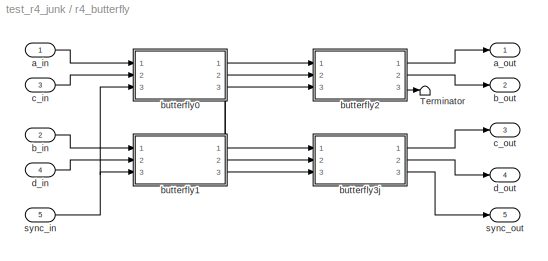
BLOCK [SubSystem] r4_butterfly
  MaskCallbackString = |
  MaskDescription = The radix-4 butterfly performs a 4 point FFT on its four inputs (a_in,b_in,c_in,d_in), which are assumed to be in normal order.  Its ouputs (a_out,b_out,c_out,d_out) are in bit-reversed order (despite the lexigraphical ordering of the output port names).
  MaskEnableString = on,on
  MaskHelp = <pre>\nDescription::\n\nThe radix-4 butterfly performs a 4 point FFT on its four inputs (a_in,b_in,c_in,d_in),\nwhich are assumed to be in normal order.  Its ouputs (a_out,b_out,c_out,d_out) are\nin bit-reversed order (despite the lexigraphical ordering of the output port names).\n\nThe outputs are two bits wider than the inputs.\nThe output precision (i.e. the number of fractional bits) stays the...<+237ch>
  MaskIconFrame = on
  MaskIconOpaque = on
  MaskIconRotate = none
  MaskIconUnits = autoscale
  MaskInitialization = %return\nr4_butterfly_init(gcb,n_bits,add_latency);\n
  MaskPromptString = Bit Width In|Adder Latency
  MaskSelfModifiable = on
  MaskStyleString = edit,edit
  MaskTabNameString = ,
  MaskToolTipString = on,on
  MaskTunableValueString = on,on
  MaskType = Radix-4 Butterfly
  MaskValueString = 2|1
  MaskVarAliasString = ,
  MaskVariables = n_bits=@1;add_latency=@2;
  MaskVisibilityString = on,on
  MinAlgLoopOccurrences = off
  Ports = [5, 5]
  RTWSystemCode = Auto
  TreatAsAtomicUnit = off
  UserData = DataTag18
  UserDataPersistent = on
BLOCK [Terminator] r4_butterfly/Terminator
BLOCK [Inport] r4_butterfly/a_in
  IconDisplay = Port number
  LatchInput = off
  Port = 1
BLOCK [Outport] r4_butterfly/a_out
  BusOutputAsStruct = off
  IconDisplay = Port number
BLOCK [Inport] r4_butterfly/b_in
  IconDisplay = Port number
  LatchInput = off
  Port = 2
BLOCK [Outport] r4_butterfly/b_out
  BusOutputAsStruct = off
  IconDisplay = Port number
  Port = 2
BLOCK [SubSystem] r4_butterfly/butterfly0
  MaskCallbackString = |
  MaskDescription = The radix-2 butterfly produces a+b and a-b outputs for a and b inputs.
  MaskEnableString = on,on
  MaskHelp = <pre>\nDescription::\n\nThe radix-2 butterfly produces a+b and a-b outputs for a and b inputs.\nThe outputs are one bit wider than the inputs.\nThe output precision (i.e. the number of fractional bits) stays the same.\n\nMask Parameters::\n\nBit Width In (n_bits): Specifies the width of the real/imaginary components.\nWidth of each component is assumed equal.\n\nAdder Latency (add_latency): Latenc...<+48ch>  <repeated x3 — deduplicated; at blocks: butterfly0, butterfly1, butterfly2>
  MaskIconFrame = on
  MaskIconOpaque = on
  MaskIconRotate = none
  MaskIconUnits = autoscale
  MaskPromptString = Bit Width In|Adder Latency
  MaskSelfModifiable = on
  MaskStyleString = edit,edit
  MaskTabNameString = ,
  MaskToolTipString = on,on
  MaskTunableValueString = on,on
  MaskType = Radix-2 Butterfly
  MaskValueString = 2|1
  MaskVarAliasString = ,
  MaskVariables = n_bits=@1;add_latency=@2;
  MaskVisibilityString = on,on
  MinAlgLoopOccurrences = off
  Ports = [3, 3]
  RTWSystemCode = Auto
  TreatAsAtomicUnit = off
  UserData = DataTag19
  UserDataPersistent = on
BLOCK [Reference] r4_butterfly/butterfly0/Delay  REF=xbsIndex_r3/Delay
  Ports = [1, 1]
  SourceBlock = xbsIndex_r3/Delay
  SourceType = Xilinx Delay Block
  accept_only_valid = off
  dbl_ovrd = off
  en = off
  explicit_period = off
  init_zero = on
  latency = 1
  period = 1
  reg_retiming = off
  show_param = off
  xl_area = [0, 0, 0, 0, 0, 0, 0]
  xl_use_area = off
BLOCK [Inport] r4_butterfly/butterfly0/a
  IconDisplay = Port number
  LatchInput = off
  Port = 1
BLOCK [Outport] r4_butterfly/butterfly0/a+b
  BusOutputAsStruct = off
  IconDisplay = Port number
BLOCK [Outport] r4_butterfly/butterfly0/a-b
  BusOutputAsStruct = off
  IconDisplay = Port number
  Port = 2
BLOCK [Reference] r4_butterfly/butterfly0/add_im  REF=xbsIndex_r3/AddSub
  Ports = [2, 1]
  SourceBlock = xbsIndex_r3/AddSub
  SourceType = Xilinx Adder/Subtractor
  arith_type = Unsigned
  bin_pt = 2
  dbl_ovrd = off
  en = off
  explicit_period = off
  gen_core = off
  latency = 1
  mode = Addition
  n_bits = 8
  overflow = Wrap
  period = 1
  pipeline = on
  precision = Full
  quantization = Truncate
  show_param = on
  use_carryin = off
  use_carryout = off
  use_core = on
  use_rpm = on
  xl_area = [0, 0, 0, 0, 0, 0, 0]
  xl_use_area = off
BLOCK [Reference] r4_butterfly/butterfly0/add_re  REF=xbsIndex_r3/AddSub
  Ports = [2, 1]
  SourceBlock = xbsIndex_r3/AddSub
  SourceType = Xilinx Adder/Subtractor
  arith_type = Unsigned
  bin_pt = 2
  dbl_ovrd = off
  en = off
  explicit_period = off
  gen_core = off
  latency = 1
  mode = Addition
  n_bits = 8
  overflow = Wrap
  period = 1
  pipeline = on
  precision = Full
  quantization = Truncate
  show_param = on
  use_carryin = off
  use_carryout = off
  use_core = on
  use_rpm = on
  xl_area = [0, 0, 0, 0, 0, 0, 0]
  xl_use_area = off
BLOCK [Inport] r4_butterfly/butterfly0/b
  IconDisplay = Port number
  LatchInput = off
  Port = 2
BLOCK [SubSystem] r4_butterfly/butterfly0/c_to_ri
  AttributesFormatString = 2_0 r/i
  MaskCallbackString = |
  MaskDescription = Outputs real and imaginary components of a complex input.
  MaskEnableString = on,on
  MaskIconFrame = on
  MaskIconOpaque = on
  MaskIconRotate = none
  MaskIconUnits = autoscale
  MaskPromptString = Bit Width|Binary Point
  MaskSelfModifiable = on
  MaskStyleString = edit,edit
  MaskTabNameString = ,
  MaskToolTipString = on,on
  MaskTunableValueString = on,on
  MaskType = Complex to Real-Imag
  MaskValueString = 2|0
  MaskVarAliasString = ,
  MaskVariables = n_bits=@1;bin_pt=@2;
  MaskVisibilityString = on,on
  MinAlgLoopOccurrences = off
  Ports = [1, 2]
  RTWSystemCode = Auto
  TreatAsAtomicUnit = off
  UserData = DataTag20
  UserDataPersistent = on
BLOCK [Inport] r4_butterfly/butterfly0/c_to_ri/c
  IconDisplay = Port number
  LatchInput = off
  Port = 1
BLOCK [Reference] r4_butterfly/butterfly0/c_to_ri/force_im  REF=xbsIndex_r3/Reinterpret
  Ports = [1, 1]
  SourceBlock = xbsIndex_r3/Reinterpret
  SourceType = Xilinx Type Reinterpreting Block
  arith_type = Signed  (2's comp)
  bin_pt = 0
  force_arith_type = on
  force_bin_pt = on
  force_valid = on
BLOCK [Reference] r4_butterfly/butterfly0/c_to_ri/force_re  REF=xbsIndex_r3/Reinterpret
  Ports = [1, 1]
  SourceBlock = xbsIndex_r3/Reinterpret
  SourceType = Xilinx Type Reinterpreting Block
  arith_type = Signed  (2's comp)
  bin_pt = 0
  force_arith_type = on
  force_bin_pt = on
  force_valid = on
BLOCK [Outport] r4_butterfly/butterfly0/c_to_ri/im
  BusOutputAsStruct = off
  IconDisplay = Port number
  Port = 2
BLOCK [Outport] r4_butterfly/butterfly0/c_to_ri/re
  BusOutputAsStruct = off
  IconDisplay = Port number
BLOCK [Reference] r4_butterfly/butterfly0/c_to_ri/slice_im  REF=xbsIndex_r3/Slice
  Ports = [1, 1]
  SourceBlock = xbsIndex_r3/Slice
  SourceType = Xilinx Slice Block
  base0 = LSB of Input
  base1 = MSB of Input
  bit0 = 0
  bit1 = 0
  boolean_output = off
  dbl_ovrd = off
  explicit_period = off
  mode = Lower Bit Location + Width
  nbits = 2
  period = 1
BLOCK [Reference] r4_butterfly/butterfly0/c_to_ri/slice_re  REF=xbsIndex_r3/Slice
  Ports = [1, 1]
  SourceBlock = xbsIndex_r3/Slice
  SourceType = Xilinx Slice Block
  base0 = LSB of Input
  base1 = MSB of Input
  bit0 = 0
  bit1 = 0
  boolean_output = off
  dbl_ovrd = off
  explicit_period = off
  mode = Upper Bit Location + Width
  nbits = 2
  period = 1
BLOCK [SubSystem] r4_butterfly/butterfly0/c_to_ri1
  AttributesFormatString = 2_0 r/i
  MaskCallbackString = |
  MaskDescription = Outputs real and imaginary components of a complex input.
  MaskEnableString = on,on
  MaskIconFrame = on
  MaskIconOpaque = on
  MaskIconRotate = none
  MaskIconUnits = autoscale
  MaskPromptString = Bit Width|Binary Point
  MaskSelfModifiable = on
  MaskStyleString = edit,edit
  MaskTabNameString = ,
  MaskToolTipString = on,on
  MaskTunableValueString = on,on
  MaskType = Complex to Real-Imag
  MaskValueString = 2|0
  MaskVarAliasString = ,
  MaskVariables = n_bits=@1;bin_pt=@2;
  MaskVisibilityString = on,on
  MinAlgLoopOccurrences = off
  Ports = [1, 2]
  RTWSystemCode = Auto
  TreatAsAtomicUnit = off
  UserData = DataTag21
  UserDataPersistent = on
BLOCK [Inport] r4_butterfly/butterfly0/c_to_ri1/c
  IconDisplay = Port number
  LatchInput = off
  Port = 1
BLOCK [Reference] r4_butterfly/butterfly0/c_to_ri1/force_im  REF=xbsIndex_r3/Reinterpret
  Ports = [1, 1]
  SourceBlock = xbsIndex_r3/Reinterpret
  SourceType = Xilinx Type Reinterpreting Block
  arith_type = Signed  (2's comp)
  bin_pt = 0
  force_arith_type = on
  force_bin_pt = on
  force_valid = on
BLOCK [Reference] r4_butterfly/butterfly0/c_to_ri1/force_re  REF=xbsIndex_r3/Reinterpret
  Ports = [1, 1]
  SourceBlock = xbsIndex_r3/Reinterpret
  SourceType = Xilinx Type Reinterpreting Block
  arith_type = Signed  (2's comp)
  bin_pt = 0
  force_arith_type = on
  force_bin_pt = on
  force_valid = on
BLOCK [Outport] r4_butterfly/butterfly0/c_to_ri1/im
  BusOutputAsStruct = off
  IconDisplay = Port number
  Port = 2
BLOCK [Outport] r4_butterfly/butterfly0/c_to_ri1/re
  BusOutputAsStruct = off
  IconDisplay = Port number
BLOCK [Reference] r4_butterfly/butterfly0/c_to_ri1/slice_im  REF=xbsIndex_r3/Slice
  Ports = [1, 1]
  SourceBlock = xbsIndex_r3/Slice
  SourceType = Xilinx Slice Block
  base0 = LSB of Input
  base1 = MSB of Input
  bit0 = 0
  bit1 = 0
  boolean_output = off
  dbl_ovrd = off
  explicit_period = off
  mode = Lower Bit Location + Width
  nbits = 2
  period = 1
BLOCK [Reference] r4_butterfly/butterfly0/c_to_ri1/slice_re  REF=xbsIndex_r3/Slice
  Ports = [1, 1]
  SourceBlock = xbsIndex_r3/Slice
  SourceType = Xilinx Slice Block
  base0 = LSB of Input
  base1 = MSB of Input
  bit0 = 0
  bit1 = 0
  boolean_output = off
  dbl_ovrd = off
  explicit_period = off
  mode = Upper Bit Location + Width
  nbits = 2
  period = 1
BLOCK [SubSystem] r4_butterfly/butterfly0/ri_to_c
  MaskDescription = Concatenates real and imaginary inputs into a complex output.
  MaskHelp = <pre>\nDescription::\n\nConcatenates a real and imaginary input into a complex output.\nUseful for simplifying interconnects.\nSee also: Complex to Real-Imag (c_to_ri)\n\nMask Parameters::\n\n(N/A)\n</pre>  <repeated x8 — deduplicated; at blocks: ri_to_c, ri_to_c1>
  MaskIconFrame = on
  MaskIconOpaque = on
  MaskIconRotate = none
  MaskIconUnits = autoscale
  MaskInitialization = ri_to_c_init(gcb);
  MaskSelfModifiable = on
  MaskType = Real-Imag to Complex
  MinAlgLoopOccurrences = off
  Ports = [2, 1]
  RTWSystemCode = Auto
  TreatAsAtomicUnit = off
  UserData = DataTag22
  UserDataPersistent = on
BLOCK [Outport] r4_butterfly/butterfly0/ri_to_c/c
  BusOutputAsStruct = off
  IconDisplay = Port number
BLOCK [Reference] r4_butterfly/butterfly0/ri_to_c/concat  REF=xbsIndex_r3/Concat
  Ports = [2, 1]
  SourceBlock = xbsIndex_r3/Concat
  SourceType = Xilinx Bus Concatenator
  dbl_ovrd = off
  explicit_period = off
  num_inputs = 2
  period = 1
BLOCK [Reference] r4_butterfly/butterfly0/ri_to_c/force_im  REF=xbsIndex_r3/Reinterpret
  Ports = [1, 1]
  SourceBlock = xbsIndex_r3/Reinterpret
  SourceType = Xilinx Type Reinterpreting Block
  arith_type = Unsigned
  bin_pt = 0
  force_arith_type = on
  force_bin_pt = on
  force_valid = on
BLOCK [Reference] r4_butterfly/butterfly0/ri_to_c/force_re  REF=xbsIndex_r3/Reinterpret
  Ports = [1, 1]
  SourceBlock = xbsIndex_r3/Reinterpret
  SourceType = Xilinx Type Reinterpreting Block
  arith_type = Unsigned
  bin_pt = 0
  force_arith_type = on
  force_bin_pt = on
  force_valid = on
BLOCK [Inport] r4_butterfly/butterfly0/ri_to_c/im
  IconDisplay = Port number
  LatchInput = off
  Port = 2
BLOCK [Inport] r4_butterfly/butterfly0/ri_to_c/re
  IconDisplay = Port number
  LatchInput = off
  Port = 1
BLOCK [SubSystem] r4_butterfly/butterfly0/ri_to_c1
  MaskDescription = Concatenates real and imaginary inputs into a complex output.
  MaskIconFrame = on
  MaskIconOpaque = on
  MaskIconRotate = none
  MaskIconUnits = autoscale
  MaskInitialization = ri_to_c_init(gcb);
  MaskSelfModifiable = on
  MaskType = Real-Imag to Complex
  MinAlgLoopOccurrences = off
  Ports = [2, 1]
  RTWSystemCode = Auto
  TreatAsAtomicUnit = off
  UserData = DataTag23
  UserDataPersistent = on
BLOCK [Outport] r4_butterfly/butterfly0/ri_to_c1/c
  BusOutputAsStruct = off
  IconDisplay = Port number
BLOCK [Reference] r4_butterfly/butterfly0/ri_to_c1/concat  REF=xbsIndex_r3/Concat
  Ports = [2, 1]
  SourceBlock = xbsIndex_r3/Concat
  SourceType = Xilinx Bus Concatenator
  dbl_ovrd = off
  explicit_period = off
  num_inputs = 2
  period = 1
BLOCK [Reference] r4_butterfly/butterfly0/ri_to_c1/force_im  REF=xbsIndex_r3/Reinterpret
  Ports = [1, 1]
  SourceBlock = xbsIndex_r3/Reinterpret
  SourceType = Xilinx Type Reinterpreting Block
  arith_type = Unsigned
  bin_pt = 0
  force_arith_type = on
  force_bin_pt = on
  force_valid = on
BLOCK [Reference] r4_butterfly/butterfly0/ri_to_c1/force_re  REF=xbsIndex_r3/Reinterpret
  Ports = [1, 1]
  SourceBlock = xbsIndex_r3/Reinterpret
  SourceType = Xilinx Type Reinterpreting Block
  arith_type = Unsigned
  bin_pt = 0
  force_arith_type = on
  force_bin_pt = on
  force_valid = on
BLOCK [Inport] r4_butterfly/butterfly0/ri_to_c1/im
  IconDisplay = Port number
  LatchInput = off
  Port = 2
BLOCK [Inport] r4_butterfly/butterfly0/ri_to_c1/re
  IconDisplay = Port number
  LatchInput = off
  Port = 1
BLOCK [Reference] r4_butterfly/butterfly0/sub_im  REF=xbsIndex_r3/AddSub
  Ports = [2, 1]
  SourceBlock = xbsIndex_r3/AddSub
  SourceType = Xilinx Adder/Subtractor
  arith_type = Unsigned
  bin_pt = 2
  dbl_ovrd = off
  en = off
  explicit_period = off
  gen_core = off
  latency = 1
  mode = Subtraction
  n_bits = 8
  overflow = Wrap
  period = 1
  pipeline = on
  precision = Full
  quantization = Truncate
  show_param = on
  use_carryin = off
  use_carryout = off
  use_core = on
  use_rpm = on
  xl_area = [0, 0, 0, 0, 0, 0, 0]
  xl_use_area = off
BLOCK [Reference] r4_butterfly/butterfly0/sub_re  REF=xbsIndex_r3/AddSub
  Ports = [2, 1]
  SourceBlock = xbsIndex_r3/AddSub
  SourceType = Xilinx Adder/Subtractor
  arith_type = Unsigned
  bin_pt = 2
  dbl_ovrd = off
  en = off
  explicit_period = off
  gen_core = off
  latency = 1
  mode = Subtraction
  n_bits = 8
  overflow = Wrap
  period = 1
  pipeline = on
  precision = Full
  quantization = Truncate
  show_param = on
  use_carryin = off
  use_carryout = off
  use_core = on
  use_rpm = on
  xl_area = [0, 0, 0, 0, 0, 0, 0]
  xl_use_area = off
BLOCK [Inport] r4_butterfly/butterfly0/sync_in
  IconDisplay = Port number
  LatchInput = off
  Port = 3
BLOCK [Outport] r4_butterfly/butterfly0/sync_out
  BusOutputAsStruct = off
  IconDisplay = Port number
  Port = 3
BLOCK [SubSystem] r4_butterfly/butterfly1
  MaskCallbackString = |
  MaskDescription = The radix-2 butterfly produces a+b and a-b outputs for a and b inputs.
  MaskEnableString = on,on
  MaskIconFrame = on
  MaskIconOpaque = on
  MaskIconRotate = none
  MaskIconUnits = autoscale
  MaskPromptString = Bit Width In|Adder Latency
  MaskSelfModifiable = on
  MaskStyleString = edit,edit
  MaskTabNameString = ,
  MaskToolTipString = on,on
  MaskTunableValueString = on,on
  MaskType = Radix-2 Butterfly
  MaskValueString = 2|1
  MaskVarAliasString = ,
  MaskVariables = n_bits=@1;add_latency=@2;
  MaskVisibilityString = on,on
  MinAlgLoopOccurrences = off
  Ports = [3, 3]
  RTWSystemCode = Auto
  TreatAsAtomicUnit = off
  UserData = DataTag24
  UserDataPersistent = on
BLOCK [Reference] r4_butterfly/butterfly1/Delay  REF=xbsIndex_r3/Delay
  Ports = [1, 1]
  SourceBlock = xbsIndex_r3/Delay
  SourceType = Xilinx Delay Block
  accept_only_valid = off
  dbl_ovrd = off
  en = off
  explicit_period = off
  init_zero = on
  latency = 1
  period = 1
  reg_retiming = off
  show_param = off
  xl_area = [0, 0, 0, 0, 0, 0, 0]
  xl_use_area = off
BLOCK [Inport] r4_butterfly/butterfly1/a
  IconDisplay = Port number
  LatchInput = off
  Port = 1
BLOCK [Outport] r4_butterfly/butterfly1/a+b
  BusOutputAsStruct = off
  IconDisplay = Port number
BLOCK [Outport] r4_butterfly/butterfly1/a-b
  BusOutputAsStruct = off
  IconDisplay = Port number
  Port = 2
BLOCK [Reference] r4_butterfly/butterfly1/add_im  REF=xbsIndex_r3/AddSub
  Ports = [2, 1]
  SourceBlock = xbsIndex_r3/AddSub
  SourceType = Xilinx Adder/Subtractor
  arith_type = Unsigned
  bin_pt = 2
  dbl_ovrd = off
  en = off
  explicit_period = off
  gen_core = off
  latency = 1
  mode = Addition
  n_bits = 8
  overflow = Wrap
  period = 1
  pipeline = on
  precision = Full
  quantization = Truncate
  show_param = on
  use_carryin = off
  use_carryout = off
  use_core = on
  use_rpm = on
  xl_area = [0, 0, 0, 0, 0, 0, 0]
  xl_use_area = off
BLOCK [Reference] r4_butterfly/butterfly1/add_re  REF=xbsIndex_r3/AddSub
  Ports = [2, 1]
  SourceBlock = xbsIndex_r3/AddSub
  SourceType = Xilinx Adder/Subtractor
  arith_type = Unsigned
  bin_pt = 2
  dbl_ovrd = off
  en = off
  explicit_period = off
  gen_core = off
  latency = 1
  mode = Addition
  n_bits = 8
  overflow = Wrap
  period = 1
  pipeline = on
  precision = Full
  quantization = Truncate
  show_param = on
  use_carryin = off
  use_carryout = off
  use_core = on
  use_rpm = on
  xl_area = [0, 0, 0, 0, 0, 0, 0]
  xl_use_area = off
BLOCK [Inport] r4_butterfly/butterfly1/b
  IconDisplay = Port number
  LatchInput = off
  Port = 2
BLOCK [SubSystem] r4_butterfly/butterfly1/c_to_ri
  AttributesFormatString = 2_0 r/i
  MaskCallbackString = |
  MaskDescription = Outputs real and imaginary components of a complex input.
  MaskEnableString = on,on
  MaskIconFrame = on
  MaskIconOpaque = on
  MaskIconRotate = none
  MaskIconUnits = autoscale
  MaskPromptString = Bit Width|Binary Point
  MaskSelfModifiable = on
  MaskStyleString = edit,edit
  MaskTabNameString = ,
  MaskToolTipString = on,on
  MaskTunableValueString = on,on
  MaskType = Complex to Real-Imag
  MaskValueString = 2|0
  MaskVarAliasString = ,
  MaskVariables = n_bits=@1;bin_pt=@2;
  MaskVisibilityString = on,on
  MinAlgLoopOccurrences = off
  Ports = [1, 2]
  RTWSystemCode = Auto
  TreatAsAtomicUnit = off
  UserData = DataTag25
  UserDataPersistent = on
BLOCK [Inport] r4_butterfly/butterfly1/c_to_ri/c
  IconDisplay = Port number
  LatchInput = off
  Port = 1
BLOCK [Reference] r4_butterfly/butterfly1/c_to_ri/force_im  REF=xbsIndex_r3/Reinterpret
  Ports = [1, 1]
  SourceBlock = xbsIndex_r3/Reinterpret
  SourceType = Xilinx Type Reinterpreting Block
  arith_type = Signed  (2's comp)
  bin_pt = 0
  force_arith_type = on
  force_bin_pt = on
  force_valid = on
BLOCK [Reference] r4_butterfly/butterfly1/c_to_ri/force_re  REF=xbsIndex_r3/Reinterpret
  Ports = [1, 1]
  SourceBlock = xbsIndex_r3/Reinterpret
  SourceType = Xilinx Type Reinterpreting Block
  arith_type = Signed  (2's comp)
  bin_pt = 0
  force_arith_type = on
  force_bin_pt = on
  force_valid = on
BLOCK [Outport] r4_butterfly/butterfly1/c_to_ri/im
  BusOutputAsStruct = off
  IconDisplay = Port number
  Port = 2
BLOCK [Outport] r4_butterfly/butterfly1/c_to_ri/re
  BusOutputAsStruct = off
  IconDisplay = Port number
BLOCK [Reference] r4_butterfly/butterfly1/c_to_ri/slice_im  REF=xbsIndex_r3/Slice
  Ports = [1, 1]
  SourceBlock = xbsIndex_r3/Slice
  SourceType = Xilinx Slice Block
  base0 = LSB of Input
  base1 = MSB of Input
  bit0 = 0
  bit1 = 0
  boolean_output = off
  dbl_ovrd = off
  explicit_period = off
  mode = Lower Bit Location + Width
  nbits = 2
  period = 1
BLOCK [Reference] r4_butterfly/butterfly1/c_to_ri/slice_re  REF=xbsIndex_r3/Slice
  Ports = [1, 1]
  SourceBlock = xbsIndex_r3/Slice
  SourceType = Xilinx Slice Block
  base0 = LSB of Input
  base1 = MSB of Input
  bit0 = 0
  bit1 = 0
  boolean_output = off
  dbl_ovrd = off
  explicit_period = off
  mode = Upper Bit Location + Width
  nbits = 2
  period = 1
BLOCK [SubSystem] r4_butterfly/butterfly1/c_to_ri1
  AttributesFormatString = 2_0 r/i
  MaskCallbackString = |
  MaskDescription = Outputs real and imaginary components of a complex input.
  MaskEnableString = on,on
  MaskIconFrame = on
  MaskIconOpaque = on
  MaskIconRotate = none
  MaskIconUnits = autoscale
  MaskPromptString = Bit Width|Binary Point
  MaskSelfModifiable = on
  MaskStyleString = edit,edit
  MaskTabNameString = ,
  MaskToolTipString = on,on
  MaskTunableValueString = on,on
  MaskType = Complex to Real-Imag
  MaskValueString = 2|0
  MaskVarAliasString = ,
  MaskVariables = n_bits=@1;bin_pt=@2;
  MaskVisibilityString = on,on
  MinAlgLoopOccurrences = off
  Ports = [1, 2]
  RTWSystemCode = Auto
  TreatAsAtomicUnit = off
  UserData = DataTag26
  UserDataPersistent = on
BLOCK [Inport] r4_butterfly/butterfly1/c_to_ri1/c
  IconDisplay = Port number
  LatchInput = off
  Port = 1
BLOCK [Reference] r4_butterfly/butterfly1/c_to_ri1/force_im  REF=xbsIndex_r3/Reinterpret
  Ports = [1, 1]
  SourceBlock = xbsIndex_r3/Reinterpret
  SourceType = Xilinx Type Reinterpreting Block
  arith_type = Signed  (2's comp)
  bin_pt = 0
  force_arith_type = on
  force_bin_pt = on
  force_valid = on
BLOCK [Reference] r4_butterfly/butterfly1/c_to_ri1/force_re  REF=xbsIndex_r3/Reinterpret
  Ports = [1, 1]
  SourceBlock = xbsIndex_r3/Reinterpret
  SourceType = Xilinx Type Reinterpreting Block
  arith_type = Signed  (2's comp)
  bin_pt = 0
  force_arith_type = on
  force_bin_pt = on
  force_valid = on
BLOCK [Outport] r4_butterfly/butterfly1/c_to_ri1/im
  BusOutputAsStruct = off
  IconDisplay = Port number
  Port = 2
BLOCK [Outport] r4_butterfly/butterfly1/c_to_ri1/re
  BusOutputAsStruct = off
  IconDisplay = Port number
BLOCK [Reference] r4_butterfly/butterfly1/c_to_ri1/slice_im  REF=xbsIndex_r3/Slice
  Ports = [1, 1]
  SourceBlock = xbsIndex_r3/Slice
  SourceType = Xilinx Slice Block
  base0 = LSB of Input
  base1 = MSB of Input
  bit0 = 0
  bit1 = 0
  boolean_output = off
  dbl_ovrd = off
  explicit_period = off
  mode = Lower Bit Location + Width
  nbits = 2
  period = 1
BLOCK [Reference] r4_butterfly/butterfly1/c_to_ri1/slice_re  REF=xbsIndex_r3/Slice
  Ports = [1, 1]
  SourceBlock = xbsIndex_r3/Slice
  SourceType = Xilinx Slice Block
  base0 = LSB of Input
  base1 = MSB of Input
  bit0 = 0
  bit1 = 0
  boolean_output = off
  dbl_ovrd = off
  explicit_period = off
  mode = Upper Bit Location + Width
  nbits = 2
  period = 1
BLOCK [SubSystem] r4_butterfly/butterfly1/ri_to_c
  MaskDescription = Concatenates real and imaginary inputs into a complex output.
  MaskIconFrame = on
  MaskIconOpaque = on
  MaskIconRotate = none
  MaskIconUnits = autoscale
  MaskInitialization = ri_to_c_init(gcb);
  MaskSelfModifiable = on
  MaskType = Real-Imag to Complex
  MinAlgLoopOccurrences = off
  Ports = [2, 1]
  RTWSystemCode = Auto
  TreatAsAtomicUnit = off
  UserData = DataTag27
  UserDataPersistent = on
BLOCK [Outport] r4_butterfly/butterfly1/ri_to_c/c
  BusOutputAsStruct = off
  IconDisplay = Port number
BLOCK [Reference] r4_butterfly/butterfly1/ri_to_c/concat  REF=xbsIndex_r3/Concat
  Ports = [2, 1]
  SourceBlock = xbsIndex_r3/Concat
  SourceType = Xilinx Bus Concatenator
  dbl_ovrd = off
  explicit_period = off
  num_inputs = 2
  period = 1
BLOCK [Reference] r4_butterfly/butterfly1/ri_to_c/force_im  REF=xbsIndex_r3/Reinterpret
  Ports = [1, 1]
  SourceBlock = xbsIndex_r3/Reinterpret
  SourceType = Xilinx Type Reinterpreting Block
  arith_type = Unsigned
  bin_pt = 0
  force_arith_type = on
  force_bin_pt = on
  force_valid = on
BLOCK [Reference] r4_butterfly/butterfly1/ri_to_c/force_re  REF=xbsIndex_r3/Reinterpret
  Ports = [1, 1]
  SourceBlock = xbsIndex_r3/Reinterpret
  SourceType = Xilinx Type Reinterpreting Block
  arith_type = Unsigned
  bin_pt = 0
  force_arith_type = on
  force_bin_pt = on
  force_valid = on
BLOCK [Inport] r4_butterfly/butterfly1/ri_to_c/im
  IconDisplay = Port number
  LatchInput = off
  Port = 2
BLOCK [Inport] r4_butterfly/butterfly1/ri_to_c/re
  IconDisplay = Port number
  LatchInput = off
  Port = 1
BLOCK [SubSystem] r4_butterfly/butterfly1/ri_to_c1
  MaskDescription = Concatenates real and imaginary inputs into a complex output.
  MaskIconFrame = on
  MaskIconOpaque = on
  MaskIconRotate = none
  MaskIconUnits = autoscale
  MaskInitialization = ri_to_c_init(gcb);
  MaskSelfModifiable = on
  MaskType = Real-Imag to Complex
  MinAlgLoopOccurrences = off
  Ports = [2, 1]
  RTWSystemCode = Auto
  TreatAsAtomicUnit = off
  UserData = DataTag28
  UserDataPersistent = on
BLOCK [Outport] r4_butterfly/butterfly1/ri_to_c1/c
  BusOutputAsStruct = off
  IconDisplay = Port number
BLOCK [Reference] r4_butterfly/butterfly1/ri_to_c1/concat  REF=xbsIndex_r3/Concat
  Ports = [2, 1]
  SourceBlock = xbsIndex_r3/Concat
  SourceType = Xilinx Bus Concatenator
  dbl_ovrd = off
  explicit_period = off
  num_inputs = 2
  period = 1
BLOCK [Reference] r4_butterfly/butterfly1/ri_to_c1/force_im  REF=xbsIndex_r3/Reinterpret
  Ports = [1, 1]
  SourceBlock = xbsIndex_r3/Reinterpret
  SourceType = Xilinx Type Reinterpreting Block
  arith_type = Unsigned
  bin_pt = 0
  force_arith_type = on
  force_bin_pt = on
  force_valid = on
BLOCK [Reference] r4_butterfly/butterfly1/ri_to_c1/force_re  REF=xbsIndex_r3/Reinterpret
  Ports = [1, 1]
  SourceBlock = xbsIndex_r3/Reinterpret
  SourceType = Xilinx Type Reinterpreting Block
  arith_type = Unsigned
  bin_pt = 0
  force_arith_type = on
  force_bin_pt = on
  force_valid = on
BLOCK [Inport] r4_butterfly/butterfly1/ri_to_c1/im
  IconDisplay = Port number
  LatchInput = off
  Port = 2
BLOCK [Inport] r4_butterfly/butterfly1/ri_to_c1/re
  IconDisplay = Port number
  LatchInput = off
  Port = 1
BLOCK [Reference] r4_butterfly/butterfly1/sub_im  REF=xbsIndex_r3/AddSub
  Ports = [2, 1]
  SourceBlock = xbsIndex_r3/AddSub
  SourceType = Xilinx Adder/Subtractor
  arith_type = Unsigned
  bin_pt = 2
  dbl_ovrd = off
  en = off
  explicit_period = off
  gen_core = off
  latency = 1
  mode = Subtraction
  n_bits = 8
  overflow = Wrap
  period = 1
  pipeline = on
  precision = Full
  quantization = Truncate
  show_param = on
  use_carryin = off
  use_carryout = off
  use_core = on
  use_rpm = on
  xl_area = [0, 0, 0, 0, 0, 0, 0]
  xl_use_area = off
BLOCK [Reference] r4_butterfly/butterfly1/sub_re  REF=xbsIndex_r3/AddSub
  Ports = [2, 1]
  SourceBlock = xbsIndex_r3/AddSub
  SourceType = Xilinx Adder/Subtractor
  arith_type = Unsigned
  bin_pt = 2
  dbl_ovrd = off
  en = off
  explicit_period = off
  gen_core = off
  latency = 1
  mode = Subtraction
  n_bits = 8
  overflow = Wrap
  period = 1
  pipeline = on
  precision = Full
  quantization = Truncate
  show_param = on
  use_carryin = off
  use_carryout = off
  use_core = on
  use_rpm = on
  xl_area = [0, 0, 0, 0, 0, 0, 0]
  xl_use_area = off
BLOCK [Inport] r4_butterfly/butterfly1/sync_in
  IconDisplay = Port number
  LatchInput = off
  Port = 3
BLOCK [Outport] r4_butterfly/butterfly1/sync_out
  BusOutputAsStruct = off
  IconDisplay = Port number
  Port = 3
BLOCK [SubSystem] r4_butterfly/butterfly2
  MaskCallbackString = |
  MaskDescription = The radix-2 butterfly produces a+b and a-b outputs for a and b inputs.
  MaskEnableString = on,on
  MaskIconFrame = on
  MaskIconOpaque = on
  MaskIconRotate = none
  MaskIconUnits = autoscale
  MaskPromptString = Bit Width In|Adder Latency
  MaskSelfModifiable = on
  MaskStyleString = edit,edit
  MaskTabNameString = ,
  MaskToolTipString = on,on
  MaskTunableValueString = on,on
  MaskType = Radix-2 Butterfly
  MaskValueString = 3|1
  MaskVarAliasString = ,
  MaskVariables = n_bits=@1;add_latency=@2;
  MaskVisibilityString = on,on
  MinAlgLoopOccurrences = off
  Ports = [3, 3]
  RTWSystemCode = Auto
  TreatAsAtomicUnit = off
  UserData = DataTag29
  UserDataPersistent = on
BLOCK [Reference] r4_butterfly/butterfly2/Delay  REF=xbsIndex_r3/Delay
  Ports = [1, 1]
  SourceBlock = xbsIndex_r3/Delay
  SourceType = Xilinx Delay Block
  accept_only_valid = off
  dbl_ovrd = off
  en = off
  explicit_period = off
  init_zero = on
  latency = 1
  period = 1
  reg_retiming = off
  show_param = off
  xl_area = [0, 0, 0, 0, 0, 0, 0]
  xl_use_area = off
BLOCK [Inport] r4_butterfly/butterfly2/a
  IconDisplay = Port number
  LatchInput = off
  Port = 1
BLOCK [Outport] r4_butterfly/butterfly2/a+b
  BusOutputAsStruct = off
  IconDisplay = Port number
BLOCK [Outport] r4_butterfly/butterfly2/a-b
  BusOutputAsStruct = off
  IconDisplay = Port number
  Port = 2
BLOCK [Reference] r4_butterfly/butterfly2/add_im  REF=xbsIndex_r3/AddSub
  Ports = [2, 1]
  SourceBlock = xbsIndex_r3/AddSub
  SourceType = Xilinx Adder/Subtractor
  arith_type = Unsigned
  bin_pt = 2
  dbl_ovrd = off
  en = off
  explicit_period = off
  gen_core = off
  latency = 1
  mode = Addition
  n_bits = 8
  overflow = Wrap
  period = 1
  pipeline = on
  precision = Full
  quantization = Truncate
  show_param = on
  use_carryin = off
  use_carryout = off
  use_core = on
  use_rpm = on
  xl_area = [0, 0, 0, 0, 0, 0, 0]
  xl_use_area = off
BLOCK [Reference] r4_butterfly/butterfly2/add_re  REF=xbsIndex_r3/AddSub
  Ports = [2, 1]
  SourceBlock = xbsIndex_r3/AddSub
  SourceType = Xilinx Adder/Subtractor
  arith_type = Unsigned
  bin_pt = 2
  dbl_ovrd = off
  en = off
  explicit_period = off
  gen_core = off
  latency = 1
  mode = Addition
  n_bits = 8
  overflow = Wrap
  period = 1
  pipeline = on
  precision = Full
  quantization = Truncate
  show_param = on
  use_carryin = off
  use_carryout = off
  use_core = on
  use_rpm = on
  xl_area = [0, 0, 0, 0, 0, 0, 0]
  xl_use_area = off
BLOCK [Inport] r4_butterfly/butterfly2/b
  IconDisplay = Port number
  LatchInput = off
  Port = 2
BLOCK [SubSystem] r4_butterfly/butterfly2/c_to_ri
  AttributesFormatString = 3_0 r/i
  MaskCallbackString = |
  MaskDescription = Outputs real and imaginary components of a complex input.
  MaskEnableString = on,on
  MaskIconFrame = on
  MaskIconOpaque = on
  MaskIconRotate = none
  MaskIconUnits = autoscale
  MaskPromptString = Bit Width|Binary Point
  MaskSelfModifiable = on
  MaskStyleString = edit,edit
  MaskTabNameString = ,
  MaskToolTipString = on,on
  MaskTunableValueString = on,on
  MaskType = Complex to Real-Imag
  MaskValueString = 3|0
  MaskVarAliasString = ,
  MaskVariables = n_bits=@1;bin_pt=@2;
  MaskVisibilityString = on,on
  MinAlgLoopOccurrences = off
  Ports = [1, 2]
  RTWSystemCode = Auto
  TreatAsAtomicUnit = off
  UserData = DataTag30
  UserDataPersistent = on
BLOCK [Inport] r4_butterfly/butterfly2/c_to_ri/c
  IconDisplay = Port number
  LatchInput = off
  Port = 1
BLOCK [Reference] r4_butterfly/butterfly2/c_to_ri/force_im  REF=xbsIndex_r3/Reinterpret
  Ports = [1, 1]
  SourceBlock = xbsIndex_r3/Reinterpret
  SourceType = Xilinx Type Reinterpreting Block
  arith_type = Signed  (2's comp)
  bin_pt = 0
  force_arith_type = on
  force_bin_pt = on
  force_valid = on
BLOCK [Reference] r4_butterfly/butterfly2/c_to_ri/force_re  REF=xbsIndex_r3/Reinterpret
  Ports = [1, 1]
  SourceBlock = xbsIndex_r3/Reinterpret
  SourceType = Xilinx Type Reinterpreting Block
  arith_type = Signed  (2's comp)
  bin_pt = 0
  force_arith_type = on
  force_bin_pt = on
  force_valid = on
BLOCK [Outport] r4_butterfly/butterfly2/c_to_ri/im
  BusOutputAsStruct = off
  IconDisplay = Port number
  Port = 2
BLOCK [Outport] r4_butterfly/butterfly2/c_to_ri/re
  BusOutputAsStruct = off
  IconDisplay = Port number
BLOCK [Reference] r4_butterfly/butterfly2/c_to_ri/slice_im  REF=xbsIndex_r3/Slice
  Ports = [1, 1]
  SourceBlock = xbsIndex_r3/Slice
  SourceType = Xilinx Slice Block
  base0 = LSB of Input
  base1 = MSB of Input
  bit0 = 0
  bit1 = 0
  boolean_output = off
  dbl_ovrd = off
  explicit_period = off
  mode = Lower Bit Location + Width
  nbits = 3
  period = 1
BLOCK [Reference] r4_butterfly/butterfly2/c_to_ri/slice_re  REF=xbsIndex_r3/Slice
  Ports = [1, 1]
  SourceBlock = xbsIndex_r3/Slice
  SourceType = Xilinx Slice Block
  base0 = LSB of Input
  base1 = MSB of Input
  bit0 = 0
  bit1 = 0
  boolean_output = off
  dbl_ovrd = off
  explicit_period = off
  mode = Upper Bit Location + Width
  nbits = 3
  period = 1
BLOCK [SubSystem] r4_butterfly/butterfly2/c_to_ri1
  AttributesFormatString = 3_0 r/i
  MaskCallbackString = |
  MaskDescription = Outputs real and imaginary components of a complex input.
  MaskEnableString = on,on
  MaskIconFrame = on
  MaskIconOpaque = on
  MaskIconRotate = none
  MaskIconUnits = autoscale
  MaskPromptString = Bit Width|Binary Point
  MaskSelfModifiable = on
  MaskStyleString = edit,edit
  MaskTabNameString = ,
  MaskToolTipString = on,on
  MaskTunableValueString = on,on
  MaskType = Complex to Real-Imag
  MaskValueString = 3|0
  MaskVarAliasString = ,
  MaskVariables = n_bits=@1;bin_pt=@2;
  MaskVisibilityString = on,on
  MinAlgLoopOccurrences = off
  Ports = [1, 2]
  RTWSystemCode = Auto
  TreatAsAtomicUnit = off
  UserData = DataTag31
  UserDataPersistent = on
BLOCK [Inport] r4_butterfly/butterfly2/c_to_ri1/c
  IconDisplay = Port number
  LatchInput = off
  Port = 1
BLOCK [Reference] r4_butterfly/butterfly2/c_to_ri1/force_im  REF=xbsIndex_r3/Reinterpret
  Ports = [1, 1]
  SourceBlock = xbsIndex_r3/Reinterpret
  SourceType = Xilinx Type Reinterpreting Block
  arith_type = Signed  (2's comp)
  bin_pt = 0
  force_arith_type = on
  force_bin_pt = on
  force_valid = on
BLOCK [Reference] r4_butterfly/butterfly2/c_to_ri1/force_re  REF=xbsIndex_r3/Reinterpret
  Ports = [1, 1]
  SourceBlock = xbsIndex_r3/Reinterpret
  SourceType = Xilinx Type Reinterpreting Block
  arith_type = Signed  (2's comp)
  bin_pt = 0
  force_arith_type = on
  force_bin_pt = on
  force_valid = on
BLOCK [Outport] r4_butterfly/butterfly2/c_to_ri1/im
  BusOutputAsStruct = off
  IconDisplay = Port number
  Port = 2
BLOCK [Outport] r4_butterfly/butterfly2/c_to_ri1/re
  BusOutputAsStruct = off
  IconDisplay = Port number
BLOCK [Reference] r4_butterfly/butterfly2/c_to_ri1/slice_im  REF=xbsIndex_r3/Slice
  Ports = [1, 1]
  SourceBlock = xbsIndex_r3/Slice
  SourceType = Xilinx Slice Block
  base0 = LSB of Input
  base1 = MSB of Input
  bit0 = 0
  bit1 = 0
  boolean_output = off
  dbl_ovrd = off
  explicit_period = off
  mode = Lower Bit Location + Width
  nbits = 3
  period = 1
BLOCK [Reference] r4_butterfly/butterfly2/c_to_ri1/slice_re  REF=xbsIndex_r3/Slice
  Ports = [1, 1]
  SourceBlock = xbsIndex_r3/Slice
  SourceType = Xilinx Slice Block
  base0 = LSB of Input
  base1 = MSB of Input
  bit0 = 0
  bit1 = 0
  boolean_output = off
  dbl_ovrd = off
  explicit_period = off
  mode = Upper Bit Location + Width
  nbits = 3
  period = 1
BLOCK [SubSystem] r4_butterfly/butterfly2/ri_to_c
  MaskDescription = Concatenates real and imaginary inputs into a complex output.
  MaskIconFrame = on
  MaskIconOpaque = on
  MaskIconRotate = none
  MaskIconUnits = autoscale
  MaskInitialization = ri_to_c_init(gcb);
  MaskSelfModifiable = on
  MaskType = Real-Imag to Complex
  MinAlgLoopOccurrences = off
  Ports = [2, 1]
  RTWSystemCode = Auto
  TreatAsAtomicUnit = off
  UserData = DataTag32
  UserDataPersistent = on
BLOCK [Outport] r4_butterfly/butterfly2/ri_to_c/c
  BusOutputAsStruct = off
  IconDisplay = Port number
BLOCK [Reference] r4_butterfly/butterfly2/ri_to_c/concat  REF=xbsIndex_r3/Concat
  Ports = [2, 1]
  SourceBlock = xbsIndex_r3/Concat
  SourceType = Xilinx Bus Concatenator
  dbl_ovrd = off
  explicit_period = off
  num_inputs = 2
  period = 1
BLOCK [Reference] r4_butterfly/butterfly2/ri_to_c/force_im  REF=xbsIndex_r3/Reinterpret
  Ports = [1, 1]
  SourceBlock = xbsIndex_r3/Reinterpret
  SourceType = Xilinx Type Reinterpreting Block
  arith_type = Unsigned
  bin_pt = 0
  force_arith_type = on
  force_bin_pt = on
  force_valid = on
BLOCK [Reference] r4_butterfly/butterfly2/ri_to_c/force_re  REF=xbsIndex_r3/Reinterpret
  Ports = [1, 1]
  SourceBlock = xbsIndex_r3/Reinterpret
  SourceType = Xilinx Type Reinterpreting Block
  arith_type = Unsigned
  bin_pt = 0
  force_arith_type = on
  force_bin_pt = on
  force_valid = on
BLOCK [Inport] r4_butterfly/butterfly2/ri_to_c/im
  IconDisplay = Port number
  LatchInput = off
  Port = 2
BLOCK [Inport] r4_butterfly/butterfly2/ri_to_c/re
  IconDisplay = Port number
  LatchInput = off
  Port = 1
BLOCK [SubSystem] r4_butterfly/butterfly2/ri_to_c1
  MaskDescription = Concatenates real and imaginary inputs into a complex output.
  MaskIconFrame = on
  MaskIconOpaque = on
  MaskIconRotate = none
  MaskIconUnits = autoscale
  MaskInitialization = ri_to_c_init(gcb);
  MaskSelfModifiable = on
  MaskType = Real-Imag to Complex
  MinAlgLoopOccurrences = off
  Ports = [2, 1]
  RTWSystemCode = Auto
  TreatAsAtomicUnit = off
  UserData = DataTag33
  UserDataPersistent = on
BLOCK [Outport] r4_butterfly/butterfly2/ri_to_c1/c
  BusOutputAsStruct = off
  IconDisplay = Port number
BLOCK [Reference] r4_butterfly/butterfly2/ri_to_c1/concat  REF=xbsIndex_r3/Concat
  Ports = [2, 1]
  SourceBlock = xbsIndex_r3/Concat
  SourceType = Xilinx Bus Concatenator
  dbl_ovrd = off
  explicit_period = off
  num_inputs = 2
  period = 1
BLOCK [Reference] r4_butterfly/butterfly2/ri_to_c1/force_im  REF=xbsIndex_r3/Reinterpret
  Ports = [1, 1]
  SourceBlock = xbsIndex_r3/Reinterpret
  SourceType = Xilinx Type Reinterpreting Block
  arith_type = Unsigned
  bin_pt = 0
  force_arith_type = on
  force_bin_pt = on
  force_valid = on
BLOCK [Reference] r4_butterfly/butterfly2/ri_to_c1/force_re  REF=xbsIndex_r3/Reinterpret
  Ports = [1, 1]
  SourceBlock = xbsIndex_r3/Reinterpret
  SourceType = Xilinx Type Reinterpreting Block
  arith_type = Unsigned
  bin_pt = 0
  force_arith_type = on
  force_bin_pt = on
  force_valid = on
BLOCK [Inport] r4_butterfly/butterfly2/ri_to_c1/im
  IconDisplay = Port number
  LatchInput = off
  Port = 2
BLOCK [Inport] r4_butterfly/butterfly2/ri_to_c1/re
  IconDisplay = Port number
  LatchInput = off
  Port = 1
BLOCK [Reference] r4_butterfly/butterfly2/sub_im  REF=xbsIndex_r3/AddSub
  Ports = [2, 1]
  SourceBlock = xbsIndex_r3/AddSub
  SourceType = Xilinx Adder/Subtractor
  arith_type = Unsigned
  bin_pt = 2
  dbl_ovrd = off
  en = off
  explicit_period = off
  gen_core = off
  latency = 1
  mode = Subtraction
  n_bits = 8
  overflow = Wrap
  period = 1
  pipeline = on
  precision = Full
  quantization = Truncate
  show_param = on
  use_carryin = off
  use_carryout = off
  use_core = on
  use_rpm = on
  xl_area = [0, 0, 0, 0, 0, 0, 0]
  xl_use_area = off
BLOCK [Reference] r4_butterfly/butterfly2/sub_re  REF=xbsIndex_r3/AddSub
  Ports = [2, 1]
  SourceBlock = xbsIndex_r3/AddSub
  SourceType = Xilinx Adder/Subtractor
  arith_type = Unsigned
  bin_pt = 2
  dbl_ovrd = off
  en = off
  explicit_period = off
  gen_core = off
  latency = 1
  mode = Subtraction
  n_bits = 8
  overflow = Wrap
  period = 1
  pipeline = on
  precision = Full
  quantization = Truncate
  show_param = on
  use_carryin = off
  use_carryout = off
  use_core = on
  use_rpm = on
  xl_area = [0, 0, 0, 0, 0, 0, 0]
  xl_use_area = off
BLOCK [Inport] r4_butterfly/butterfly2/sync_in
  IconDisplay = Port number
  LatchInput = off
  Port = 3
BLOCK [Outport] r4_butterfly/butterfly2/sync_out
  BusOutputAsStruct = off
  IconDisplay = Port number
  Port = 3
BLOCK [SubSystem] r4_butterfly/butterfly3j
  MaskCallbackString = |
  MaskDescription = The radix-2 butterfly with fixed DIT -j twiddle produces a-jb on the a+b output and a+jb on the a-b output for a and b inputs.  It is intended for use within a radix-4 butterfly.
  MaskEnableString = on,on
  MaskHelp = <pre>\nDescription::\n\nThe radix-2 butterfly with fixed DIT -j twiddle produces a-jb on the a+b output\nand a+jb on the a-b output for a and b inputs.\n\nIt is intended for use within a radix-4 butterfly.\n\nThe outputs are one bit wider than the inputs.\nThe output precision (i.e. the number of fractional bits) stays the same.\n\nMask Parameters::\n\nBit Width In (n_bits): Specifies the width of...<+161ch>
  MaskIconFrame = on
  MaskIconOpaque = on
  MaskIconRotate = none
  MaskIconUnits = autoscale
  MaskPromptString = Bit Width In|Adder Latency
  MaskSelfModifiable = on
  MaskStyleString = edit,edit
  MaskTabNameString = ,
  MaskToolTipString = on,on
  MaskTunableValueString = on,on
  MaskType = Radix-2 Butterfly with fixed -j twiddle (DIT, twiddle before butterfly)
  MaskValueString = 3|1
  MaskVarAliasString = ,
  MaskVariables = n_bits=@1;add_latency=@2;
  MaskVisibilityString = on,on
  MinAlgLoopOccurrences = off
  Ports = [3, 3]
  RTWSystemCode = Auto
  TreatAsAtomicUnit = off
  UserData = DataTag34
  UserDataPersistent = on
BLOCK [Reference] r4_butterfly/butterfly3j/Delay  REF=xbsIndex_r3/Delay
  Ports = [1, 1]
  SourceBlock = xbsIndex_r3/Delay
  SourceType = Xilinx Delay Block
  accept_only_valid = off
  dbl_ovrd = off
  en = off
  explicit_period = off
  init_zero = on
  latency = 1
  period = 1
  reg_retiming = off
  show_param = off
  xl_area = [0, 0, 0, 0, 0, 0, 0]
  xl_use_area = off
BLOCK [Inport] r4_butterfly/butterfly3j/a
  IconDisplay = Port number
  LatchInput = off
  Port = 1
BLOCK [Outport] r4_butterfly/butterfly3j/a+b
  BusOutputAsStruct = off
  IconDisplay = Port number
BLOCK [Outport] r4_butterfly/butterfly3j/a-b
  BusOutputAsStruct = off
  IconDisplay = Port number
  Port = 2
BLOCK [Reference] r4_butterfly/butterfly3j/add_im  REF=xbsIndex_r3/AddSub
  Ports = [2, 1]
  SourceBlock = xbsIndex_r3/AddSub
  SourceType = Xilinx Adder/Subtractor
  arith_type = Unsigned
  bin_pt = 2
  dbl_ovrd = off
  en = off
  explicit_period = off
  gen_core = off
  latency = 1
  mode = Subtraction
  n_bits = 8
  overflow = Wrap
  period = 1
  pipeline = on
  precision = Full
  quantization = Truncate
  show_param = on
  use_carryin = off
  use_carryout = off
  use_core = on
  use_rpm = on
  xl_area = [0, 0, 0, 0, 0, 0, 0]
  xl_use_area = off
BLOCK [Reference] r4_butterfly/butterfly3j/add_re  REF=xbsIndex_r3/AddSub
  Ports = [2, 1]
  SourceBlock = xbsIndex_r3/AddSub
  SourceType = Xilinx Adder/Subtractor
  arith_type = Unsigned
  bin_pt = 2
  dbl_ovrd = off
  en = off
  explicit_period = off
  gen_core = off
  latency = 1
  mode = Addition
  n_bits = 8
  overflow = Wrap
  period = 1
  pipeline = on
  precision = Full
  quantization = Truncate
  show_param = on
  use_carryin = off
  use_carryout = off
  use_core = on
  use_rpm = on
  xl_area = [0, 0, 0, 0, 0, 0, 0]
  xl_use_area = off
BLOCK [Inport] r4_butterfly/butterfly3j/b
  IconDisplay = Port number
  LatchInput = off
  Port = 2
BLOCK [SubSystem] r4_butterfly/butterfly3j/c_to_ri
  AttributesFormatString = 3_0 r/i
  MaskCallbackString = |
  MaskDescription = Outputs real and imaginary components of a complex input.
  MaskEnableString = on,on
  MaskIconFrame = on
  MaskIconOpaque = on
  MaskIconRotate = none
  MaskIconUnits = autoscale
  MaskPromptString = Bit Width|Binary Point
  MaskSelfModifiable = on
  MaskStyleString = edit,edit
  MaskTabNameString = ,
  MaskToolTipString = on,on
  MaskTunableValueString = on,on
  MaskType = Complex to Real-Imag
  MaskValueString = 3|0
  MaskVarAliasString = ,
  MaskVariables = n_bits=@1;bin_pt=@2;
  MaskVisibilityString = on,on
  MinAlgLoopOccurrences = off
  Ports = [1, 2]
  RTWSystemCode = Auto
  TreatAsAtomicUnit = off
  UserData = DataTag35
  UserDataPersistent = on
BLOCK [Inport] r4_butterfly/butterfly3j/c_to_ri/c
  IconDisplay = Port number
  LatchInput = off
  Port = 1
BLOCK [Reference] r4_butterfly/butterfly3j/c_to_ri/force_im  REF=xbsIndex_r3/Reinterpret
  Ports = [1, 1]
  SourceBlock = xbsIndex_r3/Reinterpret
  SourceType = Xilinx Type Reinterpreting Block
  arith_type = Signed  (2's comp)
  bin_pt = 0
  force_arith_type = on
  force_bin_pt = on
  force_valid = on
BLOCK [Reference] r4_butterfly/butterfly3j/c_to_ri/force_re  REF=xbsIndex_r3/Reinterpret
  Ports = [1, 1]
  SourceBlock = xbsIndex_r3/Reinterpret
  SourceType = Xilinx Type Reinterpreting Block
  arith_type = Signed  (2's comp)
  bin_pt = 0
  force_arith_type = on
  force_bin_pt = on
  force_valid = on
BLOCK [Outport] r4_butterfly/butterfly3j/c_to_ri/im
  BusOutputAsStruct = off
  IconDisplay = Port number
  Port = 2
BLOCK [Outport] r4_butterfly/butterfly3j/c_to_ri/re
  BusOutputAsStruct = off
  IconDisplay = Port number
BLOCK [Reference] r4_butterfly/butterfly3j/c_to_ri/slice_im  REF=xbsIndex_r3/Slice
  Ports = [1, 1]
  SourceBlock = xbsIndex_r3/Slice
  SourceType = Xilinx Slice Block
  base0 = LSB of Input
  base1 = MSB of Input
  bit0 = 0
  bit1 = 0
  boolean_output = off
  dbl_ovrd = off
  explicit_period = off
  mode = Lower Bit Location + Width
  nbits = 3
  period = 1
BLOCK [Reference] r4_butterfly/butterfly3j/c_to_ri/slice_re  REF=xbsIndex_r3/Slice
  Ports = [1, 1]
  SourceBlock = xbsIndex_r3/Slice
  SourceType = Xilinx Slice Block
  base0 = LSB of Input
  base1 = MSB of Input
  bit0 = 0
  bit1 = 0
  boolean_output = off
  dbl_ovrd = off
  explicit_period = off
  mode = Upper Bit Location + Width
  nbits = 3
  period = 1
BLOCK [SubSystem] r4_butterfly/butterfly3j/c_to_ri1
  AttributesFormatString = 3_0 r/i
  MaskCallbackString = |
  MaskDescription = Outputs real and imaginary components of a complex input.
  MaskEnableString = on,on
  MaskIconFrame = on
  MaskIconOpaque = on
  MaskIconRotate = none
  MaskIconUnits = autoscale
  MaskPromptString = Bit Width|Binary Point
  MaskSelfModifiable = on
  MaskStyleString = edit,edit
  MaskTabNameString = ,
  MaskToolTipString = on,on
  MaskTunableValueString = on,on
  MaskType = Complex to Real-Imag
  MaskValueString = 3|0
  MaskVarAliasString = ,
  MaskVariables = n_bits=@1;bin_pt=@2;
  MaskVisibilityString = on,on
  MinAlgLoopOccurrences = off
  Ports = [1, 2]
  RTWSystemCode = Auto
  TreatAsAtomicUnit = off
  UserData = DataTag36
  UserDataPersistent = on
BLOCK [Inport] r4_butterfly/butterfly3j/c_to_ri1/c
  IconDisplay = Port number
  LatchInput = off
  Port = 1
BLOCK [Reference] r4_butterfly/butterfly3j/c_to_ri1/force_im  REF=xbsIndex_r3/Reinterpret
  Ports = [1, 1]
  SourceBlock = xbsIndex_r3/Reinterpret
  SourceType = Xilinx Type Reinterpreting Block
  arith_type = Signed  (2's comp)
  bin_pt = 0
  force_arith_type = on
  force_bin_pt = on
  force_valid = on
BLOCK [Reference] r4_butterfly/butterfly3j/c_to_ri1/force_re  REF=xbsIndex_r3/Reinterpret
  Ports = [1, 1]
  SourceBlock = xbsIndex_r3/Reinterpret
  SourceType = Xilinx Type Reinterpreting Block
  arith_type = Signed  (2's comp)
  bin_pt = 0
  force_arith_type = on
  force_bin_pt = on
  force_valid = on
BLOCK [Outport] r4_butterfly/butterfly3j/c_to_ri1/im
  BusOutputAsStruct = off
  IconDisplay = Port number
  Port = 2
BLOCK [Outport] r4_butterfly/butterfly3j/c_to_ri1/re
  BusOutputAsStruct = off
  IconDisplay = Port number
BLOCK [Reference] r4_butterfly/butterfly3j/c_to_ri1/slice_im  REF=xbsIndex_r3/Slice
  Ports = [1, 1]
  SourceBlock = xbsIndex_r3/Slice
  SourceType = Xilinx Slice Block
  base0 = LSB of Input
  base1 = MSB of Input
  bit0 = 0
  bit1 = 0
  boolean_output = off
  dbl_ovrd = off
  explicit_period = off
  mode = Lower Bit Location + Width
  nbits = 3
  period = 1
BLOCK [Reference] r4_butterfly/butterfly3j/c_to_ri1/slice_re  REF=xbsIndex_r3/Slice
  Ports = [1, 1]
  SourceBlock = xbsIndex_r3/Slice
  SourceType = Xilinx Slice Block
  base0 = LSB of Input
  base1 = MSB of Input
  bit0 = 0
  bit1 = 0
  boolean_output = off
  dbl_ovrd = off
  explicit_period = off
  mode = Upper Bit Location + Width
  nbits = 3
  period = 1
BLOCK [SubSystem] r4_butterfly/butterfly3j/ri_to_c
  MaskDescription = Concatenates real and imaginary inputs into a complex output.
  MaskIconFrame = on
  MaskIconOpaque = on
  MaskIconRotate = none
  MaskIconUnits = autoscale
  MaskInitialization = ri_to_c_init(gcb);
  MaskSelfModifiable = on
  MaskType = Real-Imag to Complex
  MinAlgLoopOccurrences = off
  Ports = [2, 1]
  RTWSystemCode = Auto
  TreatAsAtomicUnit = off
  UserData = DataTag37
  UserDataPersistent = on
BLOCK [Outport] r4_butterfly/butterfly3j/ri_to_c/c
  BusOutputAsStruct = off
  IconDisplay = Port number
BLOCK [Reference] r4_butterfly/butterfly3j/ri_to_c/concat  REF=xbsIndex_r3/Concat
  Ports = [2, 1]
  SourceBlock = xbsIndex_r3/Concat
  SourceType = Xilinx Bus Concatenator
  dbl_ovrd = off
  explicit_period = off
  num_inputs = 2
  period = 1
BLOCK [Reference] r4_butterfly/butterfly3j/ri_to_c/force_im  REF=xbsIndex_r3/Reinterpret
  Ports = [1, 1]
  SourceBlock = xbsIndex_r3/Reinterpret
  SourceType = Xilinx Type Reinterpreting Block
  arith_type = Unsigned
  bin_pt = 0
  force_arith_type = on
  force_bin_pt = on
  force_valid = on
BLOCK [Reference] r4_butterfly/butterfly3j/ri_to_c/force_re  REF=xbsIndex_r3/Reinterpret
  Ports = [1, 1]
  SourceBlock = xbsIndex_r3/Reinterpret
  SourceType = Xilinx Type Reinterpreting Block
  arith_type = Unsigned
  bin_pt = 0
  force_arith_type = on
  force_bin_pt = on
  force_valid = on
BLOCK [Inport] r4_butterfly/butterfly3j/ri_to_c/im
  IconDisplay = Port number
  LatchInput = off
  Port = 2
BLOCK [Inport] r4_butterfly/butterfly3j/ri_to_c/re
  IconDisplay = Port number
  LatchInput = off
  Port = 1
BLOCK [SubSystem] r4_butterfly/butterfly3j/ri_to_c1
  MaskDescription = Concatenates real and imaginary inputs into a complex output.
  MaskIconFrame = on
  MaskIconOpaque = on
  MaskIconRotate = none
  MaskIconUnits = autoscale
  MaskInitialization = ri_to_c_init(gcb);
  MaskSelfModifiable = on
  MaskType = Real-Imag to Complex
  MinAlgLoopOccurrences = off
  Ports = [2, 1]
  RTWSystemCode = Auto
  TreatAsAtomicUnit = off
  UserData = DataTag38
  UserDataPersistent = on
BLOCK [Outport] r4_butterfly/butterfly3j/ri_to_c1/c
  BusOutputAsStruct = off
  IconDisplay = Port number
BLOCK [Reference] r4_butterfly/butterfly3j/ri_to_c1/concat  REF=xbsIndex_r3/Concat
  Ports = [2, 1]
  SourceBlock = xbsIndex_r3/Concat
  SourceType = Xilinx Bus Concatenator
  dbl_ovrd = off
  explicit_period = off
  num_inputs = 2
  period = 1
BLOCK [Reference] r4_butterfly/butterfly3j/ri_to_c1/force_im  REF=xbsIndex_r3/Reinterpret
  Ports = [1, 1]
  SourceBlock = xbsIndex_r3/Reinterpret
  SourceType = Xilinx Type Reinterpreting Block
  arith_type = Unsigned
  bin_pt = 0
  force_arith_type = on
  force_bin_pt = on
  force_valid = on
BLOCK [Reference] r4_butterfly/butterfly3j/ri_to_c1/force_re  REF=xbsIndex_r3/Reinterpret
  Ports = [1, 1]
  SourceBlock = xbsIndex_r3/Reinterpret
  SourceType = Xilinx Type Reinterpreting Block
  arith_type = Unsigned
  bin_pt = 0
  force_arith_type = on
  force_bin_pt = on
  force_valid = on
BLOCK [Inport] r4_butterfly/butterfly3j/ri_to_c1/im
  IconDisplay = Port number
  LatchInput = off
  Port = 2
BLOCK [Inport] r4_butterfly/butterfly3j/ri_to_c1/re
  IconDisplay = Port number
  LatchInput = off
  Port = 1
BLOCK [Reference] r4_butterfly/butterfly3j/sub_im  REF=xbsIndex_r3/AddSub
  Ports = [2, 1]
  SourceBlock = xbsIndex_r3/AddSub
  SourceType = Xilinx Adder/Subtractor
  arith_type = Unsigned
  bin_pt = 2
  dbl_ovrd = off
  en = off
  explicit_period = off
  gen_core = off
  latency = 1
  mode = Addition
  n_bits = 8
  overflow = Wrap
  period = 1
  pipeline = on
  precision = Full
  quantization = Truncate
  show_param = on
  use_carryin = off
  use_carryout = off
  use_core = on
  use_rpm = on
  xl_area = [0, 0, 0, 0, 0, 0, 0]
  xl_use_area = off
BLOCK [Reference] r4_butterfly/butterfly3j/sub_re  REF=xbsIndex_r3/AddSub
  Ports = [2, 1]
  SourceBlock = xbsIndex_r3/AddSub
  SourceType = Xilinx Adder/Subtractor
  arith_type = Unsigned
  bin_pt = 2
  dbl_ovrd = off
  en = off
  explicit_period = off
  gen_core = off
  latency = 1
  mode = Subtraction
  n_bits = 8
  overflow = Wrap
  period = 1
  pipeline = on
  precision = Full
  quantization = Truncate
  show_param = on
  use_carryin = off
  use_carryout = off
  use_core = on
  use_rpm = on
  xl_area = [0, 0, 0, 0, 0, 0, 0]
  xl_use_area = off
BLOCK [Inport] r4_butterfly/butterfly3j/sync_in
  IconDisplay = Port number
  LatchInput = off
  Port = 3
BLOCK [Outport] r4_butterfly/butterfly3j/sync_out
  BusOutputAsStruct = off
  IconDisplay = Port number
  Port = 3
BLOCK [Inport] r4_butterfly/c_in
  IconDisplay = Port number
  LatchInput = off
  Port = 3
BLOCK [Outport] r4_butterfly/c_out
  BusOutputAsStruct = off
  IconDisplay = Port number
  Port = 3
BLOCK [Inport] r4_butterfly/d_in
  IconDisplay = Port number
  LatchInput = off
  Port = 4
BLOCK [Outport] r4_butterfly/d_out
  BusOutputAsStruct = off
  IconDisplay = Port number
  Port = 4
BLOCK [Inport] r4_butterfly/sync_in
  IconDisplay = Port number
  LatchInput = off
  Port = 5
BLOCK [Outport] r4_butterfly/sync_out
  BusOutputAsStruct = off
  IconDisplay = Port number
  Port = 5
BLOCK [Reference] sync_gen  REF=simulink/Sources/Repeating\nSequence
  Ports = [0, 1]
  ShowPortLabels = on
  SourceBlock = simulink/Sources/Repeating\nSequence
  SourceType = Repeating table
  rep_seq_t = [0:16]
  rep_seq_y = [1 zeros(1,15) 1]
NET Constant1:1 -> Delay1:1, r4_butterfly:1, r4_butterfly:3, r4_butterfly:4, r4_butterfly:5
LINE Constant:1 -> r4_butterfly:2
LINE Counter:1 -> Delay:1
NET Delay1:1 -> quadplex_commutator:1, quadplex_commutator:3, quadplex_commutator:4
LINE Delay:1 -> quadplex_commutator:2
LINE Gateway In:1 -> quadplex_commutator:5
LINE Gateway Out10:1 -> Scope:3
LINE Gateway Out11:1 -> Scope:4
LINE Gateway Out12:1 -> Scope:5
LINE Gateway Out1:1 -> Display1:1
LINE Gateway Out2:1 -> Display2:1
LINE Gateway Out3:1 -> Display3:1
LINE Gateway Out4:1 -> Display4:1
LINE Gateway Out5:1 -> Display5:1
LINE Gateway Out6:1 -> Display6:1
LINE Gateway Out7:1 -> Display7:1
LINE Gateway Out8:1 -> Scope:1
LINE Gateway Out9:1 -> Scope:2
LINE Gateway Out:1 -> Display:1
NET c_to_ri/c:1 -> c_to_ri/slice_im:1, c_to_ri/slice_re:1
LINE c_to_ri/force_im:1 -> c_to_ri/im:1
LINE c_to_ri/force_re:1 -> c_to_ri/re:1
LINE c_to_ri/slice_im:1 -> c_to_ri/force_im:1
LINE c_to_ri/slice_re:1 -> c_to_ri/force_re:1
NET c_to_ri1/c:1 -> c_to_ri1/slice_im:1, c_to_ri1/slice_re:1
LINE c_to_ri1/force_im:1 -> c_to_ri1/im:1
LINE c_to_ri1/force_re:1 -> c_to_ri1/re:1
LINE c_to_ri1/slice_im:1 -> c_to_ri1/force_im:1
LINE c_to_ri1/slice_re:1 -> c_to_ri1/force_re:1
LINE c_to_ri1:1 -> Gateway Out2:1
LINE c_to_ri1:2 -> Gateway Out3:1
NET c_to_ri2/c:1 -> c_to_ri2/slice_im:1, c_to_ri2/slice_re:1
LINE c_to_ri2/force_im:1 -> c_to_ri2/im:1
LINE c_to_ri2/force_re:1 -> c_to_ri2/re:1
LINE c_to_ri2/slice_im:1 -> c_to_ri2/force_im:1
LINE c_to_ri2/slice_re:1 -> c_to_ri2/force_re:1
LINE c_to_ri2:1 -> Gateway Out4:1
LINE c_to_ri2:2 -> Gateway Out5:1
NET c_to_ri3/c:1 -> c_to_ri3/slice_im:1, c_to_ri3/slice_re:1
LINE c_to_ri3/force_im:1 -> c_to_ri3/im:1
LINE c_to_ri3/force_re:1 -> c_to_ri3/re:1
LINE c_to_ri3/slice_im:1 -> c_to_ri3/force_im:1
LINE c_to_ri3/slice_re:1 -> c_to_ri3/force_re:1
LINE c_to_ri3:1 -> Gateway Out6:1
LINE c_to_ri3:2 -> Gateway Out7:1
LINE c_to_ri:1 -> Gateway Out:1
LINE c_to_ri:2 -> Gateway Out1:1
LINE quadplex_commutator/a:1 -> quadplex_commutator/biplex_commutator_ac:1
LINE quadplex_commutator/b:1 -> quadplex_commutator/biplex_commutator_bd:1
NET quadplex_commutator/biplex_commutator_01/AloAhi:1 -> quadplex_commutator/biplex_commutator_01/Mux1:3, quadplex_commutator/biplex_commutator_01/Mux:2
LINE quadplex_commutator/biplex_commutator_01/BloBhi:1 -> quadplex_commutator/biplex_commutator_01/delay_b:1
LINE quadplex_commutator/biplex_commutator_01/Counter:1 -> quadplex_commutator/biplex_commutator_01/top_bit:1
LINE quadplex_commutator/biplex_commutator_01/Delay:1 -> quadplex_commutator/biplex_commutator_01/sync_out:1
LINE quadplex_commutator/biplex_commutator_01/Mux1:1 -> quadplex_commutator/biplex_commutator_01/AhiBhi:1
LINE quadplex_commutator/biplex_commutator_01/Mux:1 -> quadplex_commutator/biplex_commutator_01/delay_lo:1
LINE quadplex_commutator/biplex_commutator_01/delay_b/in:1 -> quadplex_commutator/biplex_commutator_01/delay_b/slr:1
LINE quadplex_commutator/biplex_commutator_01/delay_b/slr:1 -> quadplex_commutator/biplex_commutator_01/delay_b/out:1
NET quadplex_commutator/biplex_commutator_01/delay_b:1 -> quadplex_commutator/biplex_commutator_01/Mux1:2, quadplex_commutator/biplex_commutator_01/Mux:3
LINE quadplex_commutator/biplex_commutator_01/delay_lo/in:1 -> quadplex_commutator/biplex_commutator_01/delay_lo/slr:1
LINE quadplex_commutator/biplex_commutator_01/delay_lo/slr:1 -> quadplex_commutator/biplex_commutator_01/delay_lo/out:1
LINE quadplex_commutator/biplex_commutator_01/delay_lo:1 -> quadplex_commutator/biplex_commutator_01/AloBlo:1
NET quadplex_commutator/biplex_commutator_01/sync_in:1 -> quadplex_commutator/biplex_commutator_01/Counter:1, quadplex_commutator/biplex_commutator_01/Delay:1
NET quadplex_commutator/biplex_commutator_01/top_bit:1 -> quadplex_commutator/biplex_commutator_01/Mux1:1, quadplex_commutator/biplex_commutator_01/Mux:1
LINE quadplex_commutator/biplex_commutator_01:1 -> quadplex_commutator/abcd0:1
LINE quadplex_commutator/biplex_commutator_01:2 -> quadplex_commutator/abcd1:1
LINE quadplex_commutator/biplex_commutator_01:3 -> quadplex_commutator/Terminator:1
NET quadplex_commutator/biplex_commutator_23/AloAhi:1 -> quadplex_commutator/biplex_commutator_23/Mux1:3, quadplex_commutator/biplex_commutator_23/Mux:2
LINE quadplex_commutator/biplex_commutator_23/BloBhi:1 -> quadplex_commutator/biplex_commutator_23/delay_b:1
LINE quadplex_commutator/biplex_commutator_23/Counter:1 -> quadplex_commutator/biplex_commutator_23/top_bit:1
LINE quadplex_commutator/biplex_commutator_23/Delay:1 -> quadplex_commutator/biplex_commutator_23/sync_out:1
LINE quadplex_commutator/biplex_commutator_23/Mux1:1 -> quadplex_commutator/biplex_commutator_23/AhiBhi:1
LINE quadplex_commutator/biplex_commutator_23/Mux:1 -> quadplex_commutator/biplex_commutator_23/delay_lo:1
LINE quadplex_commutator/biplex_commutator_23/delay_b/in:1 -> quadplex_commutator/biplex_commutator_23/delay_b/slr:1
LINE quadplex_commutator/biplex_commutator_23/delay_b/slr:1 -> quadplex_commutator/biplex_commutator_23/delay_b/out:1
NET quadplex_commutator/biplex_commutator_23/delay_b:1 -> quadplex_commutator/biplex_commutator_23/Mux1:2, quadplex_commutator/biplex_commutator_23/Mux:3
LINE quadplex_commutator/biplex_commutator_23/delay_lo/in:1 -> quadplex_commutator/biplex_commutator_23/delay_lo/slr:1
LINE quadplex_commutator/biplex_commutator_23/delay_lo/slr:1 -> quadplex_commutator/biplex_commutator_23/delay_lo/out:1
LINE quadplex_commutator/biplex_commutator_23/delay_lo:1 -> quadplex_commutator/biplex_commutator_23/AloBlo:1
NET quadplex_commutator/biplex_commutator_23/sync_in:1 -> quadplex_commutator/biplex_commutator_23/Counter:1, quadplex_commutator/biplex_commutator_23/Delay:1
NET quadplex_commutator/biplex_commutator_23/top_bit:1 -> quadplex_commutator/biplex_commutator_23/Mux1:1, quadplex_commutator/biplex_commutator_23/Mux:1
LINE quadplex_commutator/biplex_commutator_23:1 -> quadplex_commutator/abcd2:1
LINE quadplex_commutator/biplex_commutator_23:2 -> quadplex_commutator/abcd3:1
LINE quadplex_commutator/biplex_commutator_23:3 -> quadplex_commutator/sync_out:1
NET quadplex_commutator/biplex_commutator_ac/AloAhi:1 -> quadplex_commutator/biplex_commutator_ac/Mux1:3, quadplex_commutator/biplex_commutator_ac/Mux:2
LINE quadplex_commutator/biplex_commutator_ac/BloBhi:1 -> quadplex_commutator/biplex_commutator_ac/delay_b:1
LINE quadplex_commutator/biplex_commutator_ac/Counter:1 -> quadplex_commutator/biplex_commutator_ac/top_bit:1
LINE quadplex_commutator/biplex_commutator_ac/Delay:1 -> quadplex_commutator/biplex_commutator_ac/sync_out:1
LINE quadplex_commutator/biplex_commutator_ac/Mux1:1 -> quadplex_commutator/biplex_commutator_ac/AhiBhi:1
LINE quadplex_commutator/biplex_commutator_ac/Mux:1 -> quadplex_commutator/biplex_commutator_ac/delay_lo:1
LINE quadplex_commutator/biplex_commutator_ac/delay_b/in:1 -> quadplex_commutator/biplex_commutator_ac/delay_b/slr:1
LINE quadplex_commutator/biplex_commutator_ac/delay_b/slr:1 -> quadplex_commutator/biplex_commutator_ac/delay_b/out:1
NET quadplex_commutator/biplex_commutator_ac/delay_b:1 -> quadplex_commutator/biplex_commutator_ac/Mux1:2, quadplex_commutator/biplex_commutator_ac/Mux:3
LINE quadplex_commutator/biplex_commutator_ac/delay_lo/in:1 -> quadplex_commutator/biplex_commutator_ac/delay_lo/slr:1
LINE quadplex_commutator/biplex_commutator_ac/delay_lo/slr:1 -> quadplex_commutator/biplex_commutator_ac/delay_lo/out:1
LINE quadplex_commutator/biplex_commutator_ac/delay_lo:1 -> quadplex_commutator/biplex_commutator_ac/AloBlo:1
NET quadplex_commutator/biplex_commutator_ac/sync_in:1 -> quadplex_commutator/biplex_commutator_ac/Counter:1, quadplex_commutator/biplex_commutator_ac/Delay:1
NET quadplex_commutator/biplex_commutator_ac/top_bit:1 -> quadplex_commutator/biplex_commutator_ac/Mux1:1, quadplex_commutator/biplex_commutator_ac/Mux:1
LINE quadplex_commutator/biplex_commutator_ac:1 -> quadplex_commutator/biplex_commutator_01:1
LINE quadplex_commutator/biplex_commutator_ac:2 -> quadplex_commutator/biplex_commutator_23:1
LINE quadplex_commutator/biplex_commutator_ac:3 -> quadplex_commutator/biplex_commutator_01:3
NET quadplex_commutator/biplex_commutator_bd/AloAhi:1 -> quadplex_commutator/biplex_commutator_bd/Mux1:3, quadplex_commutator/biplex_commutator_bd/Mux:2
LINE quadplex_commutator/biplex_commutator_bd/BloBhi:1 -> quadplex_commutator/biplex_commutator_bd/delay_b:1
LINE quadplex_commutator/biplex_commutator_bd/Counter:1 -> quadplex_commutator/biplex_commutator_bd/top_bit:1
LINE quadplex_commutator/biplex_commutator_bd/Delay:1 -> quadplex_commutator/biplex_commutator_bd/sync_out:1
LINE quadplex_commutator/biplex_commutator_bd/Mux1:1 -> quadplex_commutator/biplex_commutator_bd/AhiBhi:1
LINE quadplex_commutator/biplex_commutator_bd/Mux:1 -> quadplex_commutator/biplex_commutator_bd/delay_lo:1
LINE quadplex_commutator/biplex_commutator_bd/delay_b/in:1 -> quadplex_commutator/biplex_commutator_bd/delay_b/slr:1
LINE quadplex_commutator/biplex_commutator_bd/delay_b/slr:1 -> quadplex_commutator/biplex_commutator_bd/delay_b/out:1
NET quadplex_commutator/biplex_commutator_bd/delay_b:1 -> quadplex_commutator/biplex_commutator_bd/Mux1:2, quadplex_commutator/biplex_commutator_bd/Mux:3
LINE quadplex_commutator/biplex_commutator_bd/delay_lo/in:1 -> quadplex_commutator/biplex_commutator_bd/delay_lo/slr:1
LINE quadplex_commutator/biplex_commutator_bd/delay_lo/slr:1 -> quadplex_commutator/biplex_commutator_bd/delay_lo/out:1
LINE quadplex_commutator/biplex_commutator_bd/delay_lo:1 -> quadplex_commutator/biplex_commutator_bd/AloBlo:1
NET quadplex_commutator/biplex_commutator_bd/sync_in:1 -> quadplex_commutator/biplex_commutator_bd/Counter:1, quadplex_commutator/biplex_commutator_bd/Delay:1
NET quadplex_commutator/biplex_commutator_bd/top_bit:1 -> quadplex_commutator/biplex_commutator_bd/Mux1:1, quadplex_commutator/biplex_commutator_bd/Mux:1
LINE quadplex_commutator/biplex_commutator_bd:1 -> quadplex_commutator/biplex_commutator_01:2
LINE quadplex_commutator/biplex_commutator_bd:2 -> quadplex_commutator/biplex_commutator_23:2
LINE quadplex_commutator/biplex_commutator_bd:3 -> quadplex_commutator/biplex_commutator_23:3
LINE quadplex_commutator/c:1 -> quadplex_commutator/biplex_commutator_ac:2
LINE quadplex_commutator/d:1 -> quadplex_commutator/biplex_commutator_bd:2
NET quadplex_commutator/sync_in:1 -> quadplex_commutator/biplex_commutator_ac:3, quadplex_commutator/biplex_commutator_bd:3
LINE quadplex_commutator:1 -> Gateway Out8:1
LINE quadplex_commutator:2 -> Gateway Out9:1
LINE quadplex_commutator:3 -> Gateway Out10:1
LINE quadplex_commutator:4 -> Gateway Out11:1
LINE quadplex_commutator:5 -> Gateway Out12:1
LINE r4_butterfly/a_in:1 -> r4_butterfly/butterfly0:1
LINE r4_butterfly/b_in:1 -> r4_butterfly/butterfly1:1
LINE r4_butterfly/butterfly0/Delay:1 -> r4_butterfly/butterfly0/sync_out:1
LINE r4_butterfly/butterfly0/a:1 -> r4_butterfly/butterfly0/c_to_ri:1
LINE r4_butterfly/butterfly0/add_im:1 -> r4_butterfly/butterfly0/ri_to_c:2
LINE r4_butterfly/butterfly0/add_re:1 -> r4_butterfly/butterfly0/ri_to_c:1
LINE r4_butterfly/butterfly0/b:1 -> r4_butterfly/butterfly0/c_to_ri1:1
NET r4_butterfly/butterfly0/c_to_ri/c:1 -> r4_butterfly/butterfly0/c_to_ri/slice_im:1, r4_butterfly/butterfly0/c_to_ri/slice_re:1
LINE r4_butterfly/butterfly0/c_to_ri/force_im:1 -> r4_butterfly/butterfly0/c_to_ri/im:1
LINE r4_butterfly/butterfly0/c_to_ri/force_re:1 -> r4_butterfly/butterfly0/c_to_ri/re:1
LINE r4_butterfly/butterfly0/c_to_ri/slice_im:1 -> r4_butterfly/butterfly0/c_to_ri/force_im:1
LINE r4_butterfly/butterfly0/c_to_ri/slice_re:1 -> r4_butterfly/butterfly0/c_to_ri/force_re:1
NET r4_butterfly/butterfly0/c_to_ri1/c:1 -> r4_butterfly/butterfly0/c_to_ri1/slice_im:1, r4_butterfly/butterfly0/c_to_ri1/slice_re:1
LINE r4_butterfly/butterfly0/c_to_ri1/force_im:1 -> r4_butterfly/butterfly0/c_to_ri1/im:1
LINE r4_butterfly/butterfly0/c_to_ri1/force_re:1 -> r4_butterfly/butterfly0/c_to_ri1/re:1
LINE r4_butterfly/butterfly0/c_to_ri1/slice_im:1 -> r4_butterfly/butterfly0/c_to_ri1/force_im:1
LINE r4_butterfly/butterfly0/c_to_ri1/slice_re:1 -> r4_butterfly/butterfly0/c_to_ri1/force_re:1
NET r4_butterfly/butterfly0/c_to_ri1:1 -> r4_butterfly/butterfly0/add_re:2, r4_butterfly/butterfly0/sub_re:2
NET r4_butterfly/butterfly0/c_to_ri1:2 -> r4_butterfly/butterfly0/add_im:2, r4_butterfly/butterfly0/sub_im:2
NET r4_butterfly/butterfly0/c_to_ri:1 -> r4_butterfly/butterfly0/add_re:1, r4_butterfly/butterfly0/sub_re:1
NET r4_butterfly/butterfly0/c_to_ri:2 -> r4_butterfly/butterfly0/add_im:1, r4_butterfly/butterfly0/sub_im:1
LINE r4_butterfly/butterfly0/ri_to_c/concat:1 -> r4_butterfly/butterfly0/ri_to_c/c:1
LINE r4_butterfly/butterfly0/ri_to_c/force_im:1 -> r4_butterfly/butterfly0/ri_to_c/concat:2
LINE r4_butterfly/butterfly0/ri_to_c/force_re:1 -> r4_butterfly/butterfly0/ri_to_c/concat:1
LINE r4_butterfly/butterfly0/ri_to_c/im:1 -> r4_butterfly/butterfly0/ri_to_c/force_im:1
LINE r4_butterfly/butterfly0/ri_to_c/re:1 -> r4_butterfly/butterfly0/ri_to_c/force_re:1
LINE r4_butterfly/butterfly0/ri_to_c1/concat:1 -> r4_butterfly/butterfly0/ri_to_c1/c:1
LINE r4_butterfly/butterfly0/ri_to_c1/force_im:1 -> r4_butterfly/butterfly0/ri_to_c1/concat:2
LINE r4_butterfly/butterfly0/ri_to_c1/force_re:1 -> r4_butterfly/butterfly0/ri_to_c1/concat:1
LINE r4_butterfly/butterfly0/ri_to_c1/im:1 -> r4_butterfly/butterfly0/ri_to_c1/force_im:1
LINE r4_butterfly/butterfly0/ri_to_c1/re:1 -> r4_butterfly/butterfly0/ri_to_c1/force_re:1
LINE r4_butterfly/butterfly0/ri_to_c1:1 -> r4_butterfly/butterfly0/a-b:1
LINE r4_butterfly/butterfly0/ri_to_c:1 -> r4_butterfly/butterfly0/a+b:1
LINE r4_butterfly/butterfly0/sub_im:1 -> r4_butterfly/butterfly0/ri_to_c1:2
LINE r4_butterfly/butterfly0/sub_re:1 -> r4_butterfly/butterfly0/ri_to_c1:1
LINE r4_butterfly/butterfly0/sync_in:1 -> r4_butterfly/butterfly0/Delay:1
LINE r4_butterfly/butterfly0:1 -> r4_butterfly/butterfly2:1
LINE r4_butterfly/butterfly0:2 -> r4_butterfly/butterfly3j:1
LINE r4_butterfly/butterfly0:3 -> r4_butterfly/butterfly2:3
LINE r4_butterfly/butterfly1/Delay:1 -> r4_butterfly/butterfly1/sync_out:1
LINE r4_butterfly/butterfly1/a:1 -> r4_butterfly/butterfly1/c_to_ri:1
LINE r4_butterfly/butterfly1/add_im:1 -> r4_butterfly/butterfly1/ri_to_c:2
LINE r4_butterfly/butterfly1/add_re:1 -> r4_butterfly/butterfly1/ri_to_c:1
LINE r4_butterfly/butterfly1/b:1 -> r4_butterfly/butterfly1/c_to_ri1:1
NET r4_butterfly/butterfly1/c_to_ri/c:1 -> r4_butterfly/butterfly1/c_to_ri/slice_im:1, r4_butterfly/butterfly1/c_to_ri/slice_re:1
LINE r4_butterfly/butterfly1/c_to_ri/force_im:1 -> r4_butterfly/butterfly1/c_to_ri/im:1
LINE r4_butterfly/butterfly1/c_to_ri/force_re:1 -> r4_butterfly/butterfly1/c_to_ri/re:1
LINE r4_butterfly/butterfly1/c_to_ri/slice_im:1 -> r4_butterfly/butterfly1/c_to_ri/force_im:1
LINE r4_butterfly/butterfly1/c_to_ri/slice_re:1 -> r4_butterfly/butterfly1/c_to_ri/force_re:1
NET r4_butterfly/butterfly1/c_to_ri1/c:1 -> r4_butterfly/butterfly1/c_to_ri1/slice_im:1, r4_butterfly/butterfly1/c_to_ri1/slice_re:1
LINE r4_butterfly/butterfly1/c_to_ri1/force_im:1 -> r4_butterfly/butterfly1/c_to_ri1/im:1
LINE r4_butterfly/butterfly1/c_to_ri1/force_re:1 -> r4_butterfly/butterfly1/c_to_ri1/re:1
LINE r4_butterfly/butterfly1/c_to_ri1/slice_im:1 -> r4_butterfly/butterfly1/c_to_ri1/force_im:1
LINE r4_butterfly/butterfly1/c_to_ri1/slice_re:1 -> r4_butterfly/butterfly1/c_to_ri1/force_re:1
NET r4_butterfly/butterfly1/c_to_ri1:1 -> r4_butterfly/butterfly1/add_re:2, r4_butterfly/butterfly1/sub_re:2
NET r4_butterfly/butterfly1/c_to_ri1:2 -> r4_butterfly/butterfly1/add_im:2, r4_butterfly/butterfly1/sub_im:2
NET r4_butterfly/butterfly1/c_to_ri:1 -> r4_butterfly/butterfly1/add_re:1, r4_butterfly/butterfly1/sub_re:1
NET r4_butterfly/butterfly1/c_to_ri:2 -> r4_butterfly/butterfly1/add_im:1, r4_butterfly/butterfly1/sub_im:1
LINE r4_butterfly/butterfly1/ri_to_c/concat:1 -> r4_butterfly/butterfly1/ri_to_c/c:1
LINE r4_butterfly/butterfly1/ri_to_c/force_im:1 -> r4_butterfly/butterfly1/ri_to_c/concat:2
LINE r4_butterfly/butterfly1/ri_to_c/force_re:1 -> r4_butterfly/butterfly1/ri_to_c/concat:1
LINE r4_butterfly/butterfly1/ri_to_c/im:1 -> r4_butterfly/butterfly1/ri_to_c/force_im:1
LINE r4_butterfly/butterfly1/ri_to_c/re:1 -> r4_butterfly/butterfly1/ri_to_c/force_re:1
LINE r4_butterfly/butterfly1/ri_to_c1/concat:1 -> r4_butterfly/butterfly1/ri_to_c1/c:1
LINE r4_butterfly/butterfly1/ri_to_c1/force_im:1 -> r4_butterfly/butterfly1/ri_to_c1/concat:2
LINE r4_butterfly/butterfly1/ri_to_c1/force_re:1 -> r4_butterfly/butterfly1/ri_to_c1/concat:1
LINE r4_butterfly/butterfly1/ri_to_c1/im:1 -> r4_butterfly/butterfly1/ri_to_c1/force_im:1
LINE r4_butterfly/butterfly1/ri_to_c1/re:1 -> r4_butterfly/butterfly1/ri_to_c1/force_re:1
LINE r4_butterfly/butterfly1/ri_to_c1:1 -> r4_butterfly/butterfly1/a-b:1
LINE r4_butterfly/butterfly1/ri_to_c:1 -> r4_butterfly/butterfly1/a+b:1
LINE r4_butterfly/butterfly1/sub_im:1 -> r4_butterfly/butterfly1/ri_to_c1:2
LINE r4_butterfly/butterfly1/sub_re:1 -> r4_butterfly/butterfly1/ri_to_c1:1
LINE r4_butterfly/butterfly1/sync_in:1 -> r4_butterfly/butterfly1/Delay:1
LINE r4_butterfly/butterfly1:1 -> r4_butterfly/butterfly2:2
LINE r4_butterfly/butterfly1:2 -> r4_butterfly/butterfly3j:2
LINE r4_butterfly/butterfly1:3 -> r4_butterfly/butterfly3j:3
LINE r4_butterfly/butterfly2/Delay:1 -> r4_butterfly/butterfly2/sync_out:1
LINE r4_butterfly/butterfly2/a:1 -> r4_butterfly/butterfly2/c_to_ri:1
LINE r4_butterfly/butterfly2/add_im:1 -> r4_butterfly/butterfly2/ri_to_c:2
LINE r4_butterfly/butterfly2/add_re:1 -> r4_butterfly/butterfly2/ri_to_c:1
LINE r4_butterfly/butterfly2/b:1 -> r4_butterfly/butterfly2/c_to_ri1:1
NET r4_butterfly/butterfly2/c_to_ri/c:1 -> r4_butterfly/butterfly2/c_to_ri/slice_im:1, r4_butterfly/butterfly2/c_to_ri/slice_re:1
LINE r4_butterfly/butterfly2/c_to_ri/force_im:1 -> r4_butterfly/butterfly2/c_to_ri/im:1
LINE r4_butterfly/butterfly2/c_to_ri/force_re:1 -> r4_butterfly/butterfly2/c_to_ri/re:1
LINE r4_butterfly/butterfly2/c_to_ri/slice_im:1 -> r4_butterfly/butterfly2/c_to_ri/force_im:1
LINE r4_butterfly/butterfly2/c_to_ri/slice_re:1 -> r4_butterfly/butterfly2/c_to_ri/force_re:1
NET r4_butterfly/butterfly2/c_to_ri1/c:1 -> r4_butterfly/butterfly2/c_to_ri1/slice_im:1, r4_butterfly/butterfly2/c_to_ri1/slice_re:1
LINE r4_butterfly/butterfly2/c_to_ri1/force_im:1 -> r4_butterfly/butterfly2/c_to_ri1/im:1
LINE r4_butterfly/butterfly2/c_to_ri1/force_re:1 -> r4_butterfly/butterfly2/c_to_ri1/re:1
LINE r4_butterfly/butterfly2/c_to_ri1/slice_im:1 -> r4_butterfly/butterfly2/c_to_ri1/force_im:1
LINE r4_butterfly/butterfly2/c_to_ri1/slice_re:1 -> r4_butterfly/butterfly2/c_to_ri1/force_re:1
NET r4_butterfly/butterfly2/c_to_ri1:1 -> r4_butterfly/butterfly2/add_re:2, r4_butterfly/butterfly2/sub_re:2
NET r4_butterfly/butterfly2/c_to_ri1:2 -> r4_butterfly/butterfly2/add_im:2, r4_butterfly/butterfly2/sub_im:2
NET r4_butterfly/butterfly2/c_to_ri:1 -> r4_butterfly/butterfly2/add_re:1, r4_butterfly/butterfly2/sub_re:1
NET r4_butterfly/butterfly2/c_to_ri:2 -> r4_butterfly/butterfly2/add_im:1, r4_butterfly/butterfly2/sub_im:1
LINE r4_butterfly/butterfly2/ri_to_c/concat:1 -> r4_butterfly/butterfly2/ri_to_c/c:1
LINE r4_butterfly/butterfly2/ri_to_c/force_im:1 -> r4_butterfly/butterfly2/ri_to_c/concat:2
LINE r4_butterfly/butterfly2/ri_to_c/force_re:1 -> r4_butterfly/butterfly2/ri_to_c/concat:1
LINE r4_butterfly/butterfly2/ri_to_c/im:1 -> r4_butterfly/butterfly2/ri_to_c/force_im:1
LINE r4_butterfly/butterfly2/ri_to_c/re:1 -> r4_butterfly/butterfly2/ri_to_c/force_re:1
LINE r4_butterfly/butterfly2/ri_to_c1/concat:1 -> r4_butterfly/butterfly2/ri_to_c1/c:1
LINE r4_butterfly/butterfly2/ri_to_c1/force_im:1 -> r4_butterfly/butterfly2/ri_to_c1/concat:2
LINE r4_butterfly/butterfly2/ri_to_c1/force_re:1 -> r4_butterfly/butterfly2/ri_to_c1/concat:1
LINE r4_butterfly/butterfly2/ri_to_c1/im:1 -> r4_butterfly/butterfly2/ri_to_c1/force_im:1
LINE r4_butterfly/butterfly2/ri_to_c1/re:1 -> r4_butterfly/butterfly2/ri_to_c1/force_re:1
LINE r4_butterfly/butterfly2/ri_to_c1:1 -> r4_butterfly/butterfly2/a-b:1
LINE r4_butterfly/butterfly2/ri_to_c:1 -> r4_butterfly/butterfly2/a+b:1
LINE r4_butterfly/butterfly2/sub_im:1 -> r4_butterfly/butterfly2/ri_to_c1:2
LINE r4_butterfly/butterfly2/sub_re:1 -> r4_butterfly/butterfly2/ri_to_c1:1
LINE r4_butterfly/butterfly2/sync_in:1 -> r4_butterfly/butterfly2/Delay:1
LINE r4_butterfly/butterfly2:1 -> r4_butterfly/a_out:1
LINE r4_butterfly/butterfly2:2 -> r4_butterfly/b_out:1
LINE r4_butterfly/butterfly2:3 -> r4_butterfly/Terminator:1
LINE r4_butterfly/butterfly3j/Delay:1 -> r4_butterfly/butterfly3j/sync_out:1
LINE r4_butterfly/butterfly3j/a:1 -> r4_butterfly/butterfly3j/c_to_ri:1
LINE r4_butterfly/butterfly3j/add_im:1 -> r4_butterfly/butterfly3j/ri_to_c:2
LINE r4_butterfly/butterfly3j/add_re:1 -> r4_butterfly/butterfly3j/ri_to_c:1
LINE r4_butterfly/butterfly3j/b:1 -> r4_butterfly/butterfly3j/c_to_ri1:1
NET r4_butterfly/butterfly3j/c_to_ri/c:1 -> r4_butterfly/butterfly3j/c_to_ri/slice_im:1, r4_butterfly/butterfly3j/c_to_ri/slice_re:1
LINE r4_butterfly/butterfly3j/c_to_ri/force_im:1 -> r4_butterfly/butterfly3j/c_to_ri/im:1
LINE r4_butterfly/butterfly3j/c_to_ri/force_re:1 -> r4_butterfly/butterfly3j/c_to_ri/re:1
LINE r4_butterfly/butterfly3j/c_to_ri/slice_im:1 -> r4_butterfly/butterfly3j/c_to_ri/force_im:1
LINE r4_butterfly/butterfly3j/c_to_ri/slice_re:1 -> r4_butterfly/butterfly3j/c_to_ri/force_re:1
NET r4_butterfly/butterfly3j/c_to_ri1/c:1 -> r4_butterfly/butterfly3j/c_to_ri1/slice_im:1, r4_butterfly/butterfly3j/c_to_ri1/slice_re:1
LINE r4_butterfly/butterfly3j/c_to_ri1/force_im:1 -> r4_butterfly/butterfly3j/c_to_ri1/im:1
LINE r4_butterfly/butterfly3j/c_to_ri1/force_re:1 -> r4_butterfly/butterfly3j/c_to_ri1/re:1
LINE r4_butterfly/butterfly3j/c_to_ri1/slice_im:1 -> r4_butterfly/butterfly3j/c_to_ri1/force_im:1
LINE r4_butterfly/butterfly3j/c_to_ri1/slice_re:1 -> r4_butterfly/butterfly3j/c_to_ri1/force_re:1
NET r4_butterfly/butterfly3j/c_to_ri1:1 -> r4_butterfly/butterfly3j/add_im:2, r4_butterfly/butterfly3j/sub_im:2
NET r4_butterfly/butterfly3j/c_to_ri1:2 -> r4_butterfly/butterfly3j/add_re:2, r4_butterfly/butterfly3j/sub_re:2
NET r4_butterfly/butterfly3j/c_to_ri:1 -> r4_butterfly/butterfly3j/add_re:1, r4_butterfly/butterfly3j/sub_re:1
NET r4_butterfly/butterfly3j/c_to_ri:2 -> r4_butterfly/butterfly3j/add_im:1, r4_butterfly/butterfly3j/sub_im:1
LINE r4_butterfly/butterfly3j/ri_to_c/concat:1 -> r4_butterfly/butterfly3j/ri_to_c/c:1
LINE r4_butterfly/butterfly3j/ri_to_c/force_im:1 -> r4_butterfly/butterfly3j/ri_to_c/concat:2
LINE r4_butterfly/butterfly3j/ri_to_c/force_re:1 -> r4_butterfly/butterfly3j/ri_to_c/concat:1
LINE r4_butterfly/butterfly3j/ri_to_c/im:1 -> r4_butterfly/butterfly3j/ri_to_c/force_im:1
LINE r4_butterfly/butterfly3j/ri_to_c/re:1 -> r4_butterfly/butterfly3j/ri_to_c/force_re:1
LINE r4_butterfly/butterfly3j/ri_to_c1/concat:1 -> r4_butterfly/butterfly3j/ri_to_c1/c:1
LINE r4_butterfly/butterfly3j/ri_to_c1/force_im:1 -> r4_butterfly/butterfly3j/ri_to_c1/concat:2
LINE r4_butterfly/butterfly3j/ri_to_c1/force_re:1 -> r4_butterfly/butterfly3j/ri_to_c1/concat:1
LINE r4_butterfly/butterfly3j/ri_to_c1/im:1 -> r4_butterfly/butterfly3j/ri_to_c1/force_im:1
LINE r4_butterfly/butterfly3j/ri_to_c1/re:1 -> r4_butterfly/butterfly3j/ri_to_c1/force_re:1
LINE r4_butterfly/butterfly3j/ri_to_c1:1 -> r4_butterfly/butterfly3j/a-b:1
LINE r4_butterfly/butterfly3j/ri_to_c:1 -> r4_butterfly/butterfly3j/a+b:1
LINE r4_butterfly/butterfly3j/sub_im:1 -> r4_butterfly/butterfly3j/ri_to_c1:2
LINE r4_butterfly/butterfly3j/sub_re:1 -> r4_butterfly/butterfly3j/ri_to_c1:1
LINE r4_butterfly/butterfly3j/sync_in:1 -> r4_butterfly/butterfly3j/Delay:1
LINE r4_butterfly/butterfly3j:1 -> r4_butterfly/c_out:1
LINE r4_butterfly/butterfly3j:2 -> r4_butterfly/d_out:1
LINE r4_butterfly/butterfly3j:3 -> r4_butterfly/sync_out:1
LINE r4_butterfly/c_in:1 -> r4_butterfly/butterfly0:2
LINE r4_butterfly/d_in:1 -> r4_butterfly/butterfly1:2
NET r4_butterfly/sync_in:1 -> r4_butterfly/butterfly0:3, r4_butterfly/butterfly1:3
LINE r4_butterfly:1 -> c_to_ri:1
LINE r4_butterfly:2 -> c_to_ri1:1
LINE r4_butterfly:3 -> c_to_ri2:1
LINE r4_butterfly:4 -> c_to_ri3:1
LINE r4_butterfly:5 -> Terminator:1
LINE sync_gen:1 -> Gateway In:1
note: NET lines group one-source signal fan-out (src -> all destinations, sorted); 1:1 wires keep LINE
